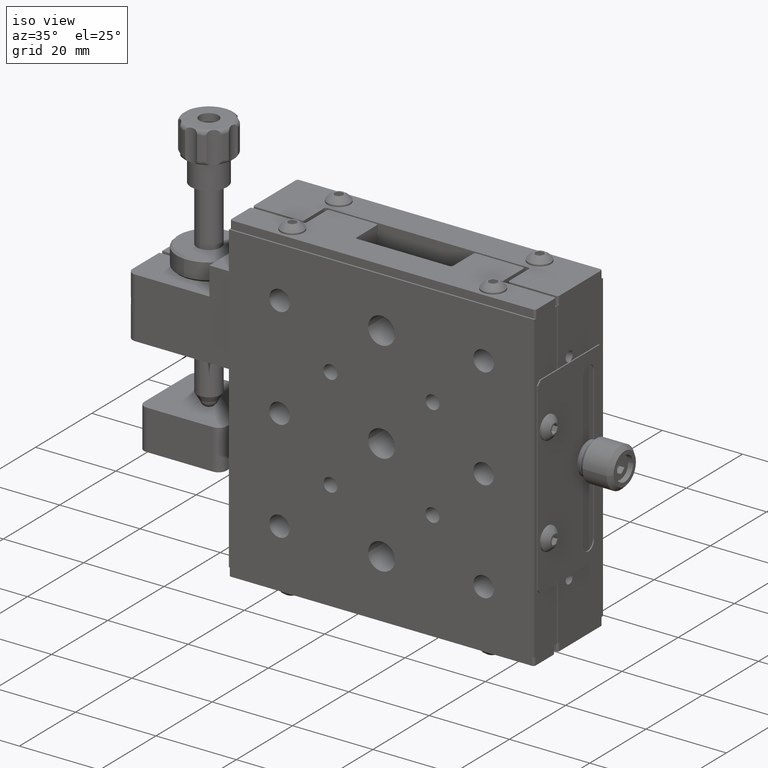
[diagram: clean part render]
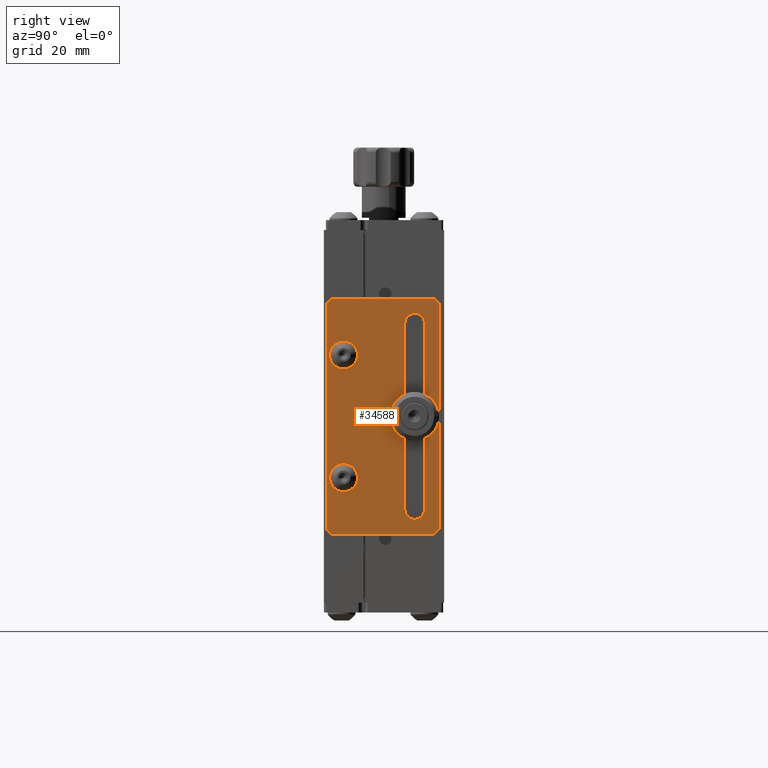
[diagram: tour spotlight — one face highlighted and labeled with its STEP entity id]
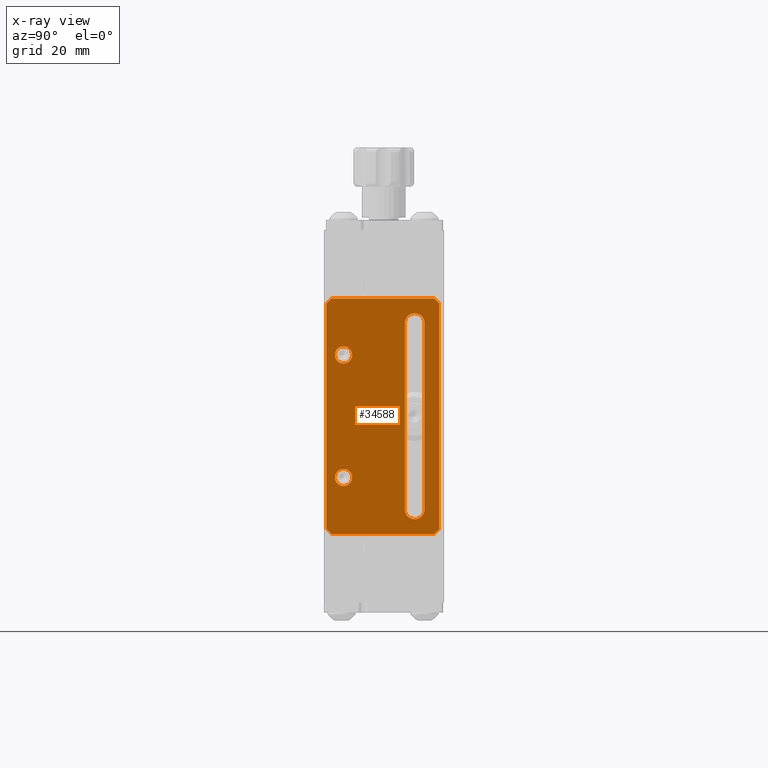
[diagram: x-ray of the same camera — body ghosted, this tour face saturated]
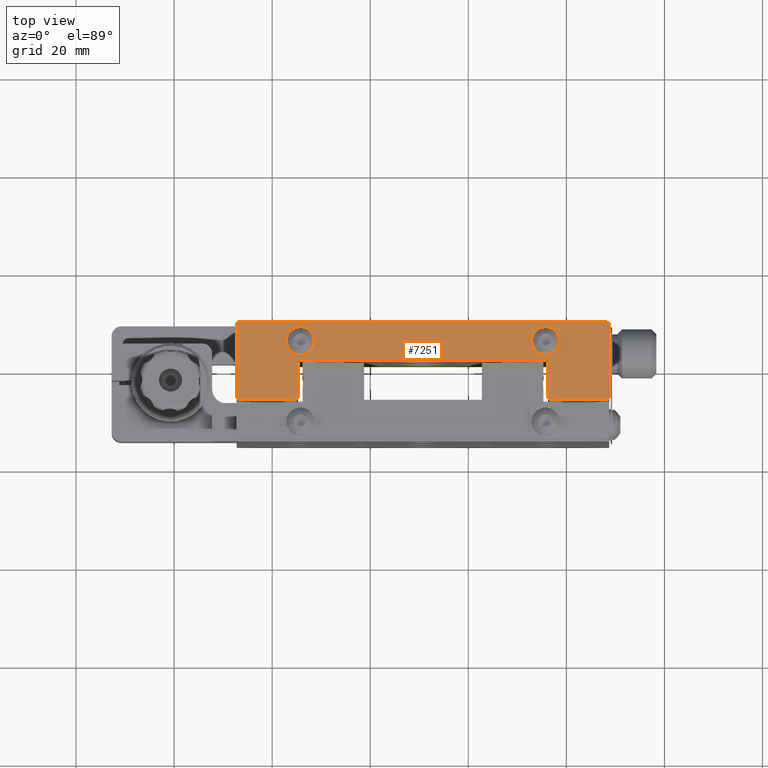
[diagram: tour spotlight — one face highlighted and labeled with its STEP entity id]
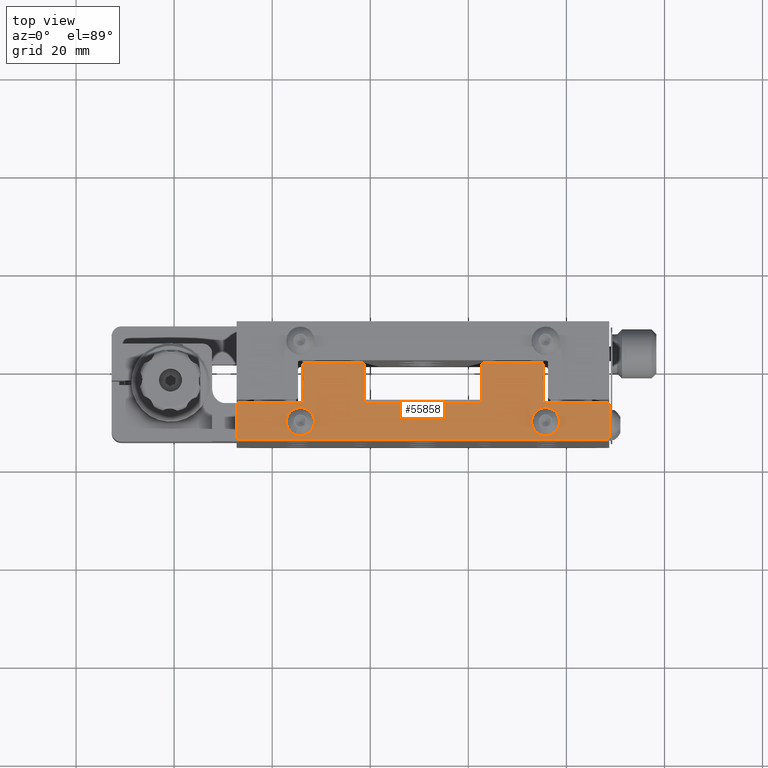
[diagram: tour spotlight — one face highlighted and labeled with its STEP entity id]
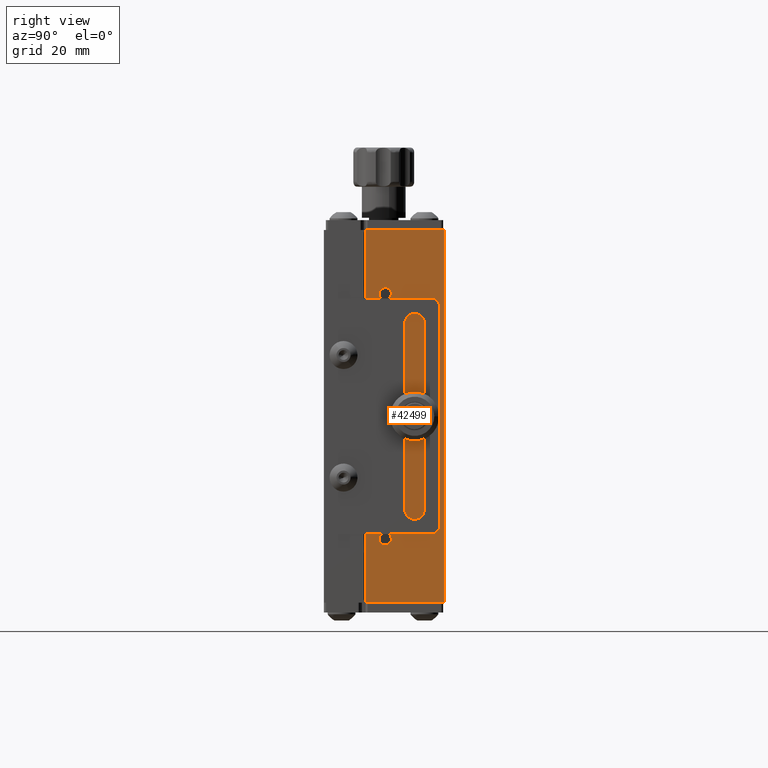
[diagram: tour spotlight — one face highlighted and labeled with its STEP entity id]
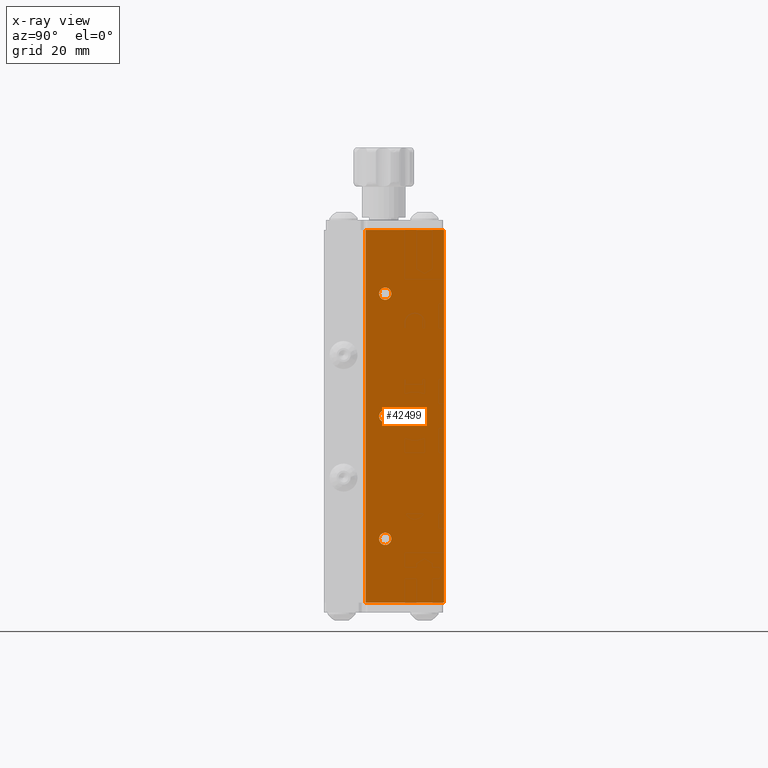
[diagram: x-ray of the same camera — body ghosted, this tour face saturated]
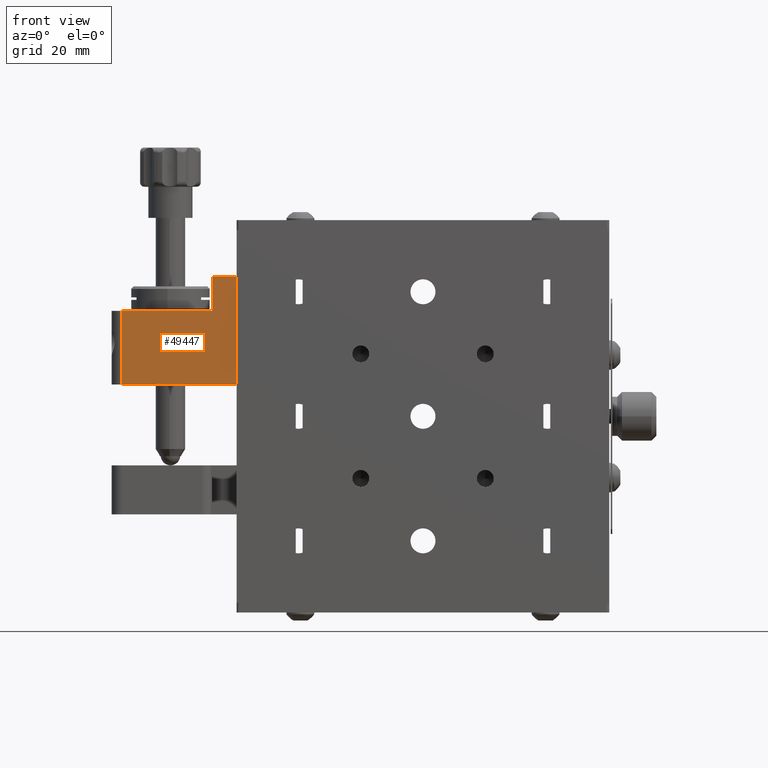
[diagram: tour spotlight — one face highlighted and labeled with its STEP entity id]
A machine part: a face-by-face anatomy tour. The part has 1901 B-rep faces; the first image is the clean iso view, then the 5 largest visible faces are spotlighted one at a time (largest first), each with its STEP entity span.

Face 1 — right view, entity #34588. An x-ray twin of the same camera follows (body ghosted, this face saturated) — the face is partly hidden behind the body. In plain terms, the highlighted planar face has unit normal (1, 0, 0).
Definition (entity closure, byte-faithful):
#589 = LINE ( 'NONE', #21734, #37340 ) ;
#680 = EDGE_CURVE ( 'NONE', #48621, #15400, #46478, .T. ) ;
#1607 = VERTEX_POINT ( 'NONE', #44574 ) ;
#1694 = DIRECTION ( 'NONE',  ( 1.200414616576333800E-016, -1.000000000000000000, -2.775557561562891400E-017 ) ) ;
#2296 = ORIENTED_EDGE ( 'NONE', *, *, #680, .T. ) ;
#3141 = CARTESIAN_POINT ( 'NONE',  ( 49.34980746936875600, 1.345865631787174700, 92.09999999999995200 ) ) ;
#3148 = DIRECTION ( 'NONE',  ( 1.000000000000000000, 1.200414616576333800E-016, 2.422095583000500800E-017 ) ) ;
#3256 = EDGE_LOOP ( 'NONE', ( #33005, #2296, #54202, #43592, #8727, #40126, #24629, #7648 ) ) ;
#3305 = DIRECTION ( 'NONE',  ( -1.200414616576333800E-016, 1.000000000000000000, 3.581790948493065600E-016 ) ) ;
#3489 = DIRECTION ( 'NONE',  ( 1.000000000000000000, 1.200414616576333800E-016, 2.422095583000500800E-017 ) ) ;
#3823 = EDGE_CURVE ( 'NONE', #20763, #13793, #21912, .T. ) ;
#4222 = VERTEX_POINT ( 'NONE', #30341 ) ;
#4531 = AXIS2_PLACEMENT_3D ( 'NONE', #45520, #19660, #49784 ) ;
#6308 = LINE ( 'NONE', #16916, #25067 ) ;
#7247 = ORIENTED_EDGE ( 'NONE', *, *, #55391, .F. ) ;
#7370 = CARTESIAN_POINT ( 'NONE',  ( 49.34980746936875600, 3.345865631787172700, 130.0999999999999400 ) ) ;
#7648 = ORIENTED_EDGE ( 'NONE', *, *, #47813, .T. ) ;
#7960 = EDGE_CURVE ( 'NONE', #15400, #28336, #16241, .T. ) ;
#8007 = ORIENTED_EDGE ( 'NONE', *, *, #3823, .F. ) ;
#8727 = ORIENTED_EDGE ( 'NONE', *, *, #56581, .T. ) ;
#9535 = AXIS2_PLACEMENT_3D ( 'NONE', #20138, #19949, #50624 ) ;
#10622 = CARTESIAN_POINT ( 'NONE',  ( 49.34980746936875600, 7.345865631787152200, 135.0999999999999400 ) ) ;
#10920 = CARTESIAN_POINT ( 'NONE',  ( 49.34980746936875600, -11.15413436821283400, 96.84999999999993700 ) ) ;
#11279 = DIRECTION ( 'NONE',  ( 0.0000000000000000000, 0.0000000000000000000, -1.000000000000000000 ) ) ;
#11571 = CARTESIAN_POINT ( 'NONE',  ( 49.34980746936875600, 8.345865631787159300, 88.09999999999993700 ) ) ;
#11760 = DIRECTION ( 'NONE',  ( -1.020089336758740900E-016, 0.7071067811865500200, 0.7071067811865451300 ) ) ;
#12651 = ORIENTED_EDGE ( 'NONE', *, *, #31283, .F. ) ;
#13051 = DIRECTION ( 'NONE',  ( 2.422095583000494100E-017, 2.775557561562888300E-017, -1.000000000000000000 ) ) ;
#13335 = CARTESIAN_POINT ( 'NONE',  ( 49.34980746936875600, -11.15413436821283400, 125.3499999999999400 ) ) ;
#13793 = VERTEX_POINT ( 'NONE', #45976 ) ;
#13824 = AXIS2_PLACEMENT_3D ( 'NONE', #25141, #20529, #47708 ) ;
#14127 = CARTESIAN_POINT ( 'NONE',  ( 49.34980746936875600, -14.65413436821283900, 134.0999999999999400 ) ) ;
#14163 = ORIENTED_EDGE ( 'NONE', *, *, #18205, .F. ) ;
#14481 = AXIS2_PLACEMENT_3D ( 'NONE', #7370, #3148, #11279 ) ;
#15400 = VERTEX_POINT ( 'NONE', #15713 ) ;
#15713 = CARTESIAN_POINT ( 'NONE',  ( 49.34980746936875600, -14.65413436821283900, 134.0999999999999400 ) ) ;
#16241 = LINE ( 'NONE', #14127, #49404 ) ;
#16916 = CARTESIAN_POINT ( 'NONE',  ( 49.34980746936875600, 7.345865631787159300, 87.09999999999995200 ) ) ;
#17084 = EDGE_LOOP ( 'NONE', ( #14163, #51995 ) ) ;
#17272 = DIRECTION ( 'NONE',  ( 1.000000000000000000, 1.200414616576333800E-016, 2.422095583000500800E-017 ) ) ;
#18151 = CARTESIAN_POINT ( 'NONE',  ( 49.34980746936875600, 5.345865631787167300, 130.0999999999999400 ) ) ;
#18205 = EDGE_CURVE ( 'NONE', #32991, #1607, #52015, .T. ) ;
#19006 = DIRECTION ( 'NONE',  ( 2.422095583000494100E-017, 2.775557561562888300E-017, -1.000000000000000000 ) ) ;
#19182 = EDGE_LOOP ( 'NONE', ( #8007, #7247, #39915, #35525, #32544 ) ) ;
#19660 = DIRECTION ( 'NONE',  ( 1.000000000000000000, 1.200414616576333800E-016, 2.422095583000500800E-017 ) ) ;
#19949 = DIRECTION ( 'NONE',  ( 1.000000000000000000, 1.200414616576333800E-016, 2.422095583000500800E-017 ) ) ;
#20090 = EDGE_CURVE ( 'NONE', #56976, #48621, #55419, .T. ) ;
#20138 = CARTESIAN_POINT ( 'NONE',  ( 49.34980746936875600, 3.345865631787176200, 92.09999999999995200 ) ) ;
#20456 = VERTEX_POINT ( 'NONE', #10920 ) ;
#20470 = CARTESIAN_POINT ( 'NONE',  ( 49.34980746936875600, 1.345865631787171100, 130.0999999999999400 ) ) ;
#20529 = DIRECTION ( 'NONE',  ( 1.000000000000000000, 1.200414616576333800E-016, 2.422095583000500800E-017 ) ) ;
#20763 = VERTEX_POINT ( 'NONE', #31842 ) ;
#20939 = LINE ( 'NONE', #51813, #43013 ) ;
#21525 = CIRCLE ( 'NONE', #4531, 1.750000000000001600 ) ;
#21734 = CARTESIAN_POINT ( 'NONE',  ( 49.34980746936875600, 8.345865631787159300, 88.09999999999993700 ) ) ;
#21812 = CIRCLE ( 'NONE', #9535, 2.000000000000001800 ) ;
#21912 = LINE ( 'NONE', #18151, #32989 ) ;
#22523 = CARTESIAN_POINT ( 'NONE',  ( 49.34980746936875600, 3.345865631787172700, 132.0999999999999400 ) ) ;
#23731 = VECTOR ( 'NONE', #45624, 999.9999999999998900 ) ;
#24629 = ORIENTED_EDGE ( 'NONE', *, *, #47806, .T. ) ;
#24932 = VERTEX_POINT ( 'NONE', #42184 ) ;
#24946 = CARTESIAN_POINT ( 'NONE',  ( 49.34980746936875600, 8.345865631787155800, 134.0999999999999400 ) ) ;
#25067 = VECTOR ( 'NONE', #3305, 1000.000000000000000 ) ;
#25141 = CARTESIAN_POINT ( 'NONE',  ( 49.34980746936875600, 3.345865631787172700, 130.0999999999999400 ) ) ;
#25532 = CARTESIAN_POINT ( 'NONE',  ( 49.34980746936875600, -13.65413436821283900, 135.0999999999999400 ) ) ;
#27277 = CARTESIAN_POINT ( 'NONE',  ( 49.34980746936875600, -11.15413436821283400, 123.5999999999999400 ) ) ;
#27357 = LINE ( 'NONE', #11571, #35629 ) ;
#27390 = EDGE_CURVE ( 'NONE', #1607, #32991, #50431, .T. ) ;
#27718 = CARTESIAN_POINT ( 'NONE',  ( 49.34980746936875600, -11.15413436821283400, 100.3499999999999400 ) ) ;
#28336 = VERTEX_POINT ( 'NONE', #44765 ) ;
#29372 = FACE_BOUND ( 'NONE', #19182, .T. ) ;
#29775 = EDGE_CURVE ( 'NONE', #39064, #24932, #47250, .T. ) ;
#30012 = DIRECTION ( 'NONE',  ( -6.775532944744138600E-017, 0.7071067811865492400, -0.7071067811865458000 ) ) ;
#30078 = ORIENTED_EDGE ( 'NONE', *, *, #41502, .F. ) ;
#30341 = CARTESIAN_POINT ( 'NONE',  ( 49.34980746936875600, 7.345865631787159300, 87.09999999999995200 ) ) ;
#31283 = EDGE_CURVE ( 'NONE', #20456, #38348, #52871, .T. ) ;
#31842 = CARTESIAN_POINT ( 'NONE',  ( 49.34980746936875600, 5.345865631787170900, 92.09999999999995200 ) ) ;
#31967 = EDGE_CURVE ( 'NONE', #56370, #39064, #45261, .T. ) ;
#32099 = VECTOR ( 'NONE', #51905, 1000.000000000000000 ) ;
#32544 = ORIENTED_EDGE ( 'NONE', *, *, #40068, .F. ) ;
#32989 = VECTOR ( 'NONE', #44612, 1000.000000000000000 ) ;
#32991 = VERTEX_POINT ( 'NONE', #13335 ) ;
#33005 = ORIENTED_EDGE ( 'NONE', *, *, #20090, .T. ) ;
#34166 = FACE_OUTER_BOUND ( 'NONE', #3256, .T. ) ;
#34449 = CARTESIAN_POINT ( 'NONE',  ( 49.34980746936875600, -11.15413436821283400, 98.59999999999993700 ) ) ;
#34558 = VECTOR ( 'NONE', #43358, 999.9999999999998900 ) ;
#34588 = ADVANCED_FACE ( 'NONE', ( #45886, #34166, #29372, #37589 ), #49201, .T. ) ;
#35525 = ORIENTED_EDGE ( 'NONE', *, *, #31967, .F. ) ;
#35580 = CARTESIAN_POINT ( 'NONE',  ( 49.34980746936875600, -13.65413436821285000, 87.09999999999993700 ) ) ;
#35629 = VECTOR ( 'NONE', #11760, 1000.000000000000100 ) ;
#36090 = AXIS2_PLACEMENT_3D ( 'NONE', #39489, #3489, #52272 ) ;
#37114 = VERTEX_POINT ( 'NONE', #24946 ) ;
#37305 = AXIS2_PLACEMENT_3D ( 'NONE', #27277, #40791, #49674 ) ;
#37340 = VECTOR ( 'NONE', #39481, 1000.000000000000000 ) ;
#37589 = FACE_BOUND ( 'NONE', #49736, .T. ) ;
#38348 = VERTEX_POINT ( 'NONE', #27718 ) ;
#39064 = VERTEX_POINT ( 'NONE', #20470 ) ;
#39481 = DIRECTION ( 'NONE',  ( -2.422095583000493100E-017, -1.031783354407074700E-016, 1.000000000000000000 ) ) ;
#39489 = CARTESIAN_POINT ( 'NONE',  ( 49.34980746936875600, -11.15413436821283400, 123.5999999999999400 ) ) ;
#39556 = DIRECTION ( 'NONE',  ( 1.000000000000000000, 1.200414616576333800E-016, 2.422095583000494400E-017 ) ) ;
#39915 = ORIENTED_EDGE ( 'NONE', *, *, #29775, .F. ) ;
#40068 = EDGE_CURVE ( 'NONE', #13793, #56370, #50688, .T. ) ;
#40126 = ORIENTED_EDGE ( 'NONE', *, *, #51158, .T. ) ;
#40791 = DIRECTION ( 'NONE',  ( 1.000000000000000000, 1.200414616576333800E-016, 2.422095583000500800E-017 ) ) ;
#40933 = AXIS2_PLACEMENT_3D ( 'NONE', #48430, #39556, #13051 ) ;
#41502 = EDGE_CURVE ( 'NONE', #38348, #20456, #21525, .T. ) ;
#42184 = CARTESIAN_POINT ( 'NONE',  ( 49.34980746936875600, 1.345865631787174700, 92.09999999999995200 ) ) ;
#43013 = VECTOR ( 'NONE', #30012, 1000.000000000000100 ) ;
#43358 = DIRECTION ( 'NONE',  ( 6.775532944744170700E-017, -0.7071067811865512400, 0.7071067811865439100 ) ) ;
#43592 = ORIENTED_EDGE ( 'NONE', *, *, #57146, .T. ) ;
#44574 = CARTESIAN_POINT ( 'NONE',  ( 49.34980746936875600, -11.15413436821283400, 121.8499999999999400 ) ) ;
#44612 = DIRECTION ( 'NONE',  ( -2.422095583000492800E-017, -1.190568111933556100E-016, 1.000000000000000000 ) ) ;
#44765 = CARTESIAN_POINT ( 'NONE',  ( 49.34980746936875600, -14.65413436821285700, 88.09999999999993700 ) ) ;
#45261 = CIRCLE ( 'NONE', #13824, 2.000000000000001800 ) ;
#45269 = VERTEX_POINT ( 'NONE', #35580 ) ;
#45520 = CARTESIAN_POINT ( 'NONE',  ( 49.34980746936875600, -11.15413436821283400, 98.59999999999993700 ) ) ;
#45624 = DIRECTION ( 'NONE',  ( 1.020089336758738500E-016, -0.7071067811865472400, -0.7071067811865479100 ) ) ;
#45815 = CARTESIAN_POINT ( 'NONE',  ( 49.34980746936875600, 7.345865631787152200, 135.0999999999999400 ) ) ;
#45886 = FACE_BOUND ( 'NONE', #17084, .T. ) ;
#45976 = CARTESIAN_POINT ( 'NONE',  ( 49.34980746936875600, 5.345865631787170900, 130.0999999999999400 ) ) ;
#46037 = VERTEX_POINT ( 'NONE', #52071 ) ;
#46478 = LINE ( 'NONE', #50451, #23731 ) ;
#47250 = LINE ( 'NONE', #3141, #32099 ) ;
#47708 = DIRECTION ( 'NONE',  ( 0.0000000000000000000, 0.0000000000000000000, -1.000000000000000000 ) ) ;
#47806 = EDGE_CURVE ( 'NONE', #46037, #37114, #589, .T. ) ;
#47813 = EDGE_CURVE ( 'NONE', #37114, #56976, #52538, .T. ) ;
#48333 = DIRECTION ( 'NONE',  ( 0.0000000000000000000, 0.0000000000000000000, -1.000000000000000000 ) ) ;
#48430 = CARTESIAN_POINT ( 'NONE',  ( 49.34980746936875600, -14.65413436821283900, 135.0999999999999400 ) ) ;
#48621 = VERTEX_POINT ( 'NONE', #25532 ) ;
#48995 = AXIS2_PLACEMENT_3D ( 'NONE', #34449, #17272, #48333 ) ;
#49201 = PLANE ( 'NONE',  #40933 ) ;
#49404 = VECTOR ( 'NONE', #19006, 1000.000000000000000 ) ;
#49674 = DIRECTION ( 'NONE',  ( 0.0000000000000000000, 0.0000000000000000000, -1.000000000000000000 ) ) ;
#49736 = EDGE_LOOP ( 'NONE', ( #30078, #12651 ) ) ;
#49784 = DIRECTION ( 'NONE',  ( 0.0000000000000000000, 0.0000000000000000000, -1.000000000000000000 ) ) ;
#50431 = CIRCLE ( 'NONE', #37305, 1.750000000000001600 ) ;
#50451 = CARTESIAN_POINT ( 'NONE',  ( 49.34980746936875600, -13.65413436821283900, 135.0999999999999400 ) ) ;
#50518 = VECTOR ( 'NONE', #1694, 1000.000000000000000 ) ;
#50624 = DIRECTION ( 'NONE',  ( 0.0000000000000000000, 0.0000000000000000000, -1.000000000000000000 ) ) ;
#50688 = CIRCLE ( 'NONE', #14481, 2.000000000000001800 ) ;
#51158 = EDGE_CURVE ( 'NONE', #4222, #46037, #27357, .T. ) ;
#51813 = CARTESIAN_POINT ( 'NONE',  ( 49.34980746936875600, -13.65413436821285000, 87.09999999999993700 ) ) ;
#51905 = DIRECTION ( 'NONE',  ( 2.422095583000492800E-017, 1.190568111933556100E-016, -1.000000000000000000 ) ) ;
#51995 = ORIENTED_EDGE ( 'NONE', *, *, #27390, .F. ) ;
#52015 = CIRCLE ( 'NONE', #36090, 1.750000000000001600 ) ;
#52071 = CARTESIAN_POINT ( 'NONE',  ( 49.34980746936875600, 8.345865631787159300, 88.09999999999993700 ) ) ;
#52272 = DIRECTION ( 'NONE',  ( 0.0000000000000000000, 0.0000000000000000000, -1.000000000000000000 ) ) ;
#52538 = LINE ( 'NONE', #52630, #34558 ) ;
#52630 = CARTESIAN_POINT ( 'NONE',  ( 49.34980746936875600, 8.345865631787155800, 134.0999999999999400 ) ) ;
#52871 = CIRCLE ( 'NONE', #48995, 1.750000000000001600 ) ;
#54202 = ORIENTED_EDGE ( 'NONE', *, *, #7960, .T. ) ;
#55391 = EDGE_CURVE ( 'NONE', #24932, #20763, #21812, .T. ) ;
#55419 = LINE ( 'NONE', #45815, #50518 ) ;
#56370 = VERTEX_POINT ( 'NONE', #22523 ) ;
#56581 = EDGE_CURVE ( 'NONE', #45269, #4222, #6308, .T. ) ;
#56976 = VERTEX_POINT ( 'NONE', #10622 ) ;
#57146 = EDGE_CURVE ( 'NONE', #28336, #45269, #20939, .T. ) ;

Face 2 — top view, entity #7251. In plain terms, the highlighted planar face has unit normal (0, 0, -1).
Definition (entity closure, byte-faithful):
#104 = CARTESIAN_POINT ( 'NONE',  ( 33.49980746936900300, 5.345865631787555500, 151.1000000000000500 ) ) ;
#797 = CARTESIAN_POINT ( 'NONE',  ( 36.74980746936893900, -6.654134368212541300, 151.1000000000000500 ) ) ;
#898 = VERTEX_POINT ( 'NONE', #47249 ) ;
#990 = CARTESIAN_POINT ( 'NONE',  ( -14.25019253063128100, 5.345865631787789100, 151.1000000000000500 ) ) ;
#1304 = LINE ( 'NONE', #6273, #20726 ) ;
#1334 = CARTESIAN_POINT ( 'NONE',  ( -14.75019253063126200, 1.345865631787754900, 151.1000000000000500 ) ) ;
#1521 = CARTESIAN_POINT ( 'NONE',  ( -14.75019253063126200, 1.345865631787754900, 151.1000000000000500 ) ) ;
#1540 = EDGE_CURVE ( 'NONE', #36988, #40197, #42290, .T. ) ;
#1655 = CARTESIAN_POINT ( 'NONE',  ( -14.75019253063129900, 0.8458656317877535400, 151.1000000000000500 ) ) ;
#1987 = EDGE_CURVE ( 'NONE', #28813, #25498, #46375, .T. ) ;
#2108 = CARTESIAN_POINT ( 'NONE',  ( -14.25019253063128100, 5.345865631787789100, 151.1000000000000500 ) ) ;
#2824 = LINE ( 'NONE', #1334, #13226 ) ;
#3586 = VECTOR ( 'NONE', #33900, 1000.000000000000000 ) ;
#3602 = DIRECTION ( 'NONE',  ( 1.000000000000000000, -5.204170427930398400E-015, 0.0000000000000000000 ) ) ;
#3607 = EDGE_CURVE ( 'NONE', #19057, #33077, #37805, .T. ) ;
#3773 = AXIS2_PLACEMENT_3D ( 'NONE', #26178, #39675, #53215 ) ;
#3809 = FACE_BOUND ( 'NONE', #39613, .T. ) ;
#3811 = CARTESIAN_POINT ( 'NONE',  ( -15.25019253063133100, -6.154134368212274900, 151.1000000000000500 ) ) ;
#5016 = DIRECTION ( 'NONE',  ( 1.000000000000000000, -4.987329993433298300E-015, 0.0000000000000000000 ) ) ;
#5260 = EDGE_LOOP ( 'NONE', ( #34997, #14647, #23025, #40665, #29634, #13504, #51888, #17150, #53137, #22618, #46196, #26361, #48797, #43884, #26276, #53678 ) ) ;
#5569 = CARTESIAN_POINT ( 'NONE',  ( 35.74980746936903800, 0.8458656317875574700, 151.1000000000000500 ) ) ;
#5624 = LINE ( 'NONE', #16319, #3586 ) ;
#5835 = FACE_BOUND ( 'NONE', #41958, .T. ) ;
#6101 = CARTESIAN_POINT ( 'NONE',  ( 48.74980746936902400, 8.645865631787481600, 151.1000000000000500 ) ) ;
#6273 = CARTESIAN_POINT ( 'NONE',  ( -27.25019253063131000, 9.145865631787833300, 151.1000000000000500 ) ) ;
#6540 = DIRECTION ( 'NONE',  ( -4.622231866485331300E-032, 1.201934359693186400E-028, -1.000000000000000000 ) ) ;
#6560 = CARTESIAN_POINT ( 'NONE',  ( 48.24980746936894600, -6.654134368212617700, 151.1000000000000500 ) ) ;
#6724 = DIRECTION ( 'NONE',  ( 1.000000000000000000, -5.011423375044065600E-015, 0.0000000000000000000 ) ) ;
#6751 = DIRECTION ( 'NONE',  ( -4.622231866485331300E-032, 1.201934359693186400E-028, -1.000000000000000000 ) ) ;
#6796 = CIRCLE ( 'NONE', #3773, 0.5000000000000004400 ) ;
#7100 = AXIS2_PLACEMENT_3D ( 'NONE', #51277, #20602, #16308 ) ;
#7251 = ADVANCED_FACE ( 'NONE', ( #5835, #39158, #3809 ), #15027, .F. ) ;
#7735 = CARTESIAN_POINT ( 'NONE',  ( 48.24980746936902400, 9.145865631787465600, 151.1000000000000500 ) ) ;
#7986 = AXIS2_PLACEMENT_3D ( 'NONE', #5569, #54762, #54561 ) ;
#8896 = EDGE_CURVE ( 'NONE', #44999, #32868, #56079, .T. ) ;
#9112 = CIRCLE ( 'NONE', #7986, 0.5000000000000004400 ) ;
#9325 = CIRCLE ( 'NONE', #24863, 2.250000000000019500 ) ;
#10211 = EDGE_CURVE ( 'NONE', #28813, #33077, #11252, .T. ) ;
#10328 = AXIS2_PLACEMENT_3D ( 'NONE', #22694, #36194, #5016 ) ;
#10516 = DIRECTION ( 'NONE',  ( -1.000000000000000000, 4.884981308350684800E-015, -4.641491165973216500E-032 ) ) ;
#11252 = CIRCLE ( 'NONE', #40953, 0.5000000000000004400 ) ;
#11547 = CARTESIAN_POINT ( 'NONE',  ( 36.74980746936887500, -6.154134368212542200, 151.1000000000000500 ) ) ;
#13226 = VECTOR ( 'NONE', #46022, 1000.000000000000000 ) ;
#13232 = CARTESIAN_POINT ( 'NONE',  ( 48.24980746936902400, 8.645865631787465600, 151.1000000000000500 ) ) ;
#13435 = EDGE_CURVE ( 'NONE', #14009, #23276, #49162, .T. ) ;
#13504 = ORIENTED_EDGE ( 'NONE', *, *, #57116, .T. ) ;
#14009 = VERTEX_POINT ( 'NONE', #53174 ) ;
#14647 = ORIENTED_EDGE ( 'NONE', *, *, #56918, .T. ) ;
#15027 = PLANE ( 'NONE',  #36007 ) ;
#15430 = VERTEX_POINT ( 'NONE', #37760 ) ;
#15632 = CARTESIAN_POINT ( 'NONE',  ( 35.74980746936896700, 1.345865631787531000, 151.1000000000000500 ) ) ;
#15645 = DIRECTION ( 'NONE',  ( 1.675171956143272100E-015, 1.000000000000000000, -1.201918952253625400E-028 ) ) ;
#16172 = ORIENTED_EDGE ( 'NONE', *, *, #13435, .T. ) ;
#16308 = DIRECTION ( 'NONE',  ( 1.000000000000000000, -3.469446951953587400E-015, 0.0000000000000000000 ) ) ;
#16319 = CARTESIAN_POINT ( 'NONE',  ( 48.74980746936902400, 9.145865631787481600, 151.1000000000000500 ) ) ;
#16715 = AXIS2_PLACEMENT_3D ( 'NONE', #3811, #26115, #3602 ) ;
#17150 = ORIENTED_EDGE ( 'NONE', *, *, #30018, .T. ) ;
#17547 = DIRECTION ( 'NONE',  ( 4.622231866485331300E-032, -1.201934359693186400E-028, 1.000000000000000000 ) ) ;
#18038 = CARTESIAN_POINT ( 'NONE',  ( -12.00019253063127200, 5.345865631787777500, 151.1000000000000500 ) ) ;
#18363 = CIRCLE ( 'NONE', #55400, 2.250000000000019500 ) ;
#18944 = DIRECTION ( 'NONE',  ( 4.641491166031930900E-032, 1.201934359693186400E-028, -1.000000000000000000 ) ) ;
#19057 = VERTEX_POINT ( 'NONE', #6560 ) ;
#19071 = DIRECTION ( 'NONE',  ( -4.622231866485331300E-032, 1.201934359693186400E-028, -1.000000000000000000 ) ) ;
#19261 = EDGE_CURVE ( 'NONE', #36988, #28518, #5624, .T. ) ;
#19413 = DIRECTION ( 'NONE',  ( -3.420874694626261200E-015, -1.000000000000000000, 1.201911248533847900E-028 ) ) ;
#20004 = DIRECTION ( 'NONE',  ( 1.000000000000000000, -5.011423375044089300E-015, 0.0000000000000000000 ) ) ;
#20602 = DIRECTION ( 'NONE',  ( 4.622231866485331300E-032, -1.201934359693186400E-028, 1.000000000000000000 ) ) ;
#20726 = VECTOR ( 'NONE', #33439, 1000.000000000000000 ) ;
#21495 = VECTOR ( 'NONE', #10516, 1000.000000000000000 ) ;
#22485 = VERTEX_POINT ( 'NONE', #50739 ) ;
#22618 = ORIENTED_EDGE ( 'NONE', *, *, #46211, .T. ) ;
#22694 = CARTESIAN_POINT ( 'NONE',  ( -14.25019253063129900, 0.8458656317877344400, 151.1000000000000500 ) ) ;
#23025 = ORIENTED_EDGE ( 'NONE', *, *, #55331, .F. ) ;
#23272 = CARTESIAN_POINT ( 'NONE',  ( 36.24980746936897400, 1.345865631787529300, 151.1000000000000500 ) ) ;
#23276 = VERTEX_POINT ( 'NONE', #104 ) ;
#23666 = LINE ( 'NONE', #1521, #49196 ) ;
#24767 = EDGE_CURVE ( 'NONE', #32607, #40197, #1304, .T. ) ;
#24863 = AXIS2_PLACEMENT_3D ( 'NONE', #990, #19071, #41270 ) ;
#25470 = VERTEX_POINT ( 'NONE', #15632 ) ;
#25498 = VERTEX_POINT ( 'NONE', #29393 ) ;
#26115 = DIRECTION ( 'NONE',  ( 4.622231866485331300E-032, -1.201934359693186400E-028, 1.000000000000000000 ) ) ;
#26178 = CARTESIAN_POINT ( 'NONE',  ( 48.24980746936894600, -6.154134368212585700, 151.1000000000000500 ) ) ;
#26276 = ORIENTED_EDGE ( 'NONE', *, *, #19261, .F. ) ;
#26332 = CIRCLE ( 'NONE', #27588, 2.250000000000008900 ) ;
#26361 = ORIENTED_EDGE ( 'NONE', *, *, #10211, .T. ) ;
#27458 = VERTEX_POINT ( 'NONE', #1655 ) ;
#27588 = AXIS2_PLACEMENT_3D ( 'NONE', #42605, #6751, #47784 ) ;
#28326 = DIRECTION ( 'NONE',  ( 1.000000000000000000, -3.469446951953587400E-015, 0.0000000000000000000 ) ) ;
#28438 = VERTEX_POINT ( 'NONE', #39769 ) ;
#28518 = VERTEX_POINT ( 'NONE', #36827 ) ;
#28680 = CARTESIAN_POINT ( 'NONE',  ( -27.25019253063134500, -6.654134368212232300, 151.1000000000000500 ) ) ;
#28813 = VERTEX_POINT ( 'NONE', #39497 ) ;
#28919 = DIRECTION ( 'NONE',  ( -4.622231866485331300E-032, 1.201934359693186400E-028, -1.000000000000000000 ) ) ;
#29393 = CARTESIAN_POINT ( 'NONE',  ( 36.24980746936903800, 0.8458656317875332700, 151.1000000000000500 ) ) ;
#29634 = ORIENTED_EDGE ( 'NONE', *, *, #8896, .F. ) ;
#30018 = EDGE_CURVE ( 'NONE', #27458, #22485, #57194, .T. ) ;
#30899 = EDGE_CURVE ( 'NONE', #50753, #28438, #9325, .T. ) ;
#31438 = CARTESIAN_POINT ( 'NONE',  ( -26.75019253063134200, -6.654134368212232300, 151.1000000000000500 ) ) ;
#32279 = DIRECTION ( 'NONE',  ( 1.000000000000000000, -4.884981308350684800E-015, 4.641491165973216500E-032 ) ) ;
#32607 = VERTEX_POINT ( 'NONE', #46884 ) ;
#32868 = VERTEX_POINT ( 'NONE', #31438 ) ;
#33077 = VERTEX_POINT ( 'NONE', #797 ) ;
#33439 = DIRECTION ( 'NONE',  ( 1.000000000000000000, -4.819358545279194200E-015, 4.631861516251280900E-032 ) ) ;
#33652 = VECTOR ( 'NONE', #42464, 1000.000000000000000 ) ;
#33900 = DIRECTION ( 'NONE',  ( -3.431853957132442900E-015, -1.000000000000000000, 1.201911248533847900E-028 ) ) ;
#34425 = AXIS2_PLACEMENT_3D ( 'NONE', #54974, #28919, #20004 ) ;
#34479 = AXIS2_PLACEMENT_3D ( 'NONE', #54374, #50101, #28326 ) ;
#34997 = ORIENTED_EDGE ( 'NONE', *, *, #24767, .F. ) ;
#36007 = AXIS2_PLACEMENT_3D ( 'NONE', #54866, #18944, #32279 ) ;
#36015 = VECTOR ( 'NONE', #36575, 1000.000000000000000 ) ;
#36194 = DIRECTION ( 'NONE',  ( -4.622231866485331300E-032, 1.201934359693186400E-028, -1.000000000000000000 ) ) ;
#36455 = CARTESIAN_POINT ( 'NONE',  ( -14.75019253063133500, -6.654134368212246500, 151.1000000000000500 ) ) ;
#36575 = DIRECTION ( 'NONE',  ( 1.296185381249866200E-014, 1.000000000000000000, -1.201911248533847900E-028 ) ) ;
#36760 = CARTESIAN_POINT ( 'NONE',  ( -27.25019253063130300, 8.645865631787833300, 151.1000000000000500 ) ) ;
#36827 = CARTESIAN_POINT ( 'NONE',  ( 48.74980746936894600, -6.154134368212587500, 151.1000000000000500 ) ) ;
#36988 = VERTEX_POINT ( 'NONE', #6101 ) ;
#37472 = CIRCLE ( 'NONE', #34479, 0.5000000000000038900 ) ;
#37645 = CARTESIAN_POINT ( 'NONE',  ( 48.74980746936894600, -6.654134368212586600, 151.1000000000000500 ) ) ;
#37695 = DIRECTION ( 'NONE',  ( 1.000000000000000000, -5.204170427930416600E-015, 0.0000000000000000000 ) ) ;
#37760 = CARTESIAN_POINT ( 'NONE',  ( -14.75019253063133100, -6.154134368212278400, 151.1000000000000500 ) ) ;
#37805 = LINE ( 'NONE', #37645, #33652 ) ;
#37841 = ORIENTED_EDGE ( 'NONE', *, *, #30899, .T. ) ;
#39158 = FACE_OUTER_BOUND ( 'NONE', #5260, .T. ) ;
#39186 = CIRCLE ( 'NONE', #7100, 0.5000000000000038900 ) ;
#39195 = DIRECTION ( 'NONE',  ( 1.000000000000000000, -3.469446951953611000E-015, 0.0000000000000000000 ) ) ;
#39497 = CARTESIAN_POINT ( 'NONE',  ( 36.24980746936887500, -6.154134368212531600, 151.1000000000000500 ) ) ;
#39613 = EDGE_LOOP ( 'NONE', ( #50260, #16172 ) ) ;
#39675 = DIRECTION ( 'NONE',  ( 4.622231866485331300E-032, -1.201934359693186400E-028, 1.000000000000000000 ) ) ;
#39769 = CARTESIAN_POINT ( 'NONE',  ( -16.50019253063129200, 5.345865631787799700, 151.1000000000000500 ) ) ;
#40197 = VERTEX_POINT ( 'NONE', #7735 ) ;
#40665 = ORIENTED_EDGE ( 'NONE', *, *, #44104, .T. ) ;
#40953 = AXIS2_PLACEMENT_3D ( 'NONE', #11547, #51019, #37695 ) ;
#40983 = EDGE_CURVE ( 'NONE', #25470, #22485, #2824, .T. ) ;
#41067 = EDGE_CURVE ( 'NONE', #27458, #15430, #23666, .T. ) ;
#41270 = DIRECTION ( 'NONE',  ( 1.000000000000000000, -5.011423375044065600E-015, 0.0000000000000000000 ) ) ;
#41638 = CARTESIAN_POINT ( 'NONE',  ( -15.25019253063133500, -6.654134368212308600, 151.1000000000000500 ) ) ;
#41686 = EDGE_CURVE ( 'NONE', #23276, #14009, #26332, .T. ) ;
#41828 = EDGE_CURVE ( 'NONE', #19057, #28518, #6796, .T. ) ;
#41958 = EDGE_LOOP ( 'NONE', ( #52045, #37841 ) ) ;
#42290 = CIRCLE ( 'NONE', #56192, 0.5000000000000004400 ) ;
#42464 = DIRECTION ( 'NONE',  ( -1.000000000000000000, 4.884981308350684800E-015, -4.641491165973216500E-032 ) ) ;
#42605 = CARTESIAN_POINT ( 'NONE',  ( 35.74980746936900300, 5.345865631787543900, 151.1000000000000500 ) ) ;
#43884 = ORIENTED_EDGE ( 'NONE', *, *, #41828, .T. ) ;
#44104 = EDGE_CURVE ( 'NONE', #898, #32868, #39186, .T. ) ;
#44954 = EDGE_CURVE ( 'NONE', #28438, #50753, #18363, .T. ) ;
#44999 = VERTEX_POINT ( 'NONE', #41638 ) ;
#46022 = DIRECTION ( 'NONE',  ( -1.000000000000000000, 4.340754335495218700E-015, -4.641491165973216500E-032 ) ) ;
#46196 = ORIENTED_EDGE ( 'NONE', *, *, #1987, .F. ) ;
#46211 = EDGE_CURVE ( 'NONE', #25470, #25498, #9112, .T. ) ;
#46375 = LINE ( 'NONE', #23272, #36015 ) ;
#46884 = CARTESIAN_POINT ( 'NONE',  ( -26.75019253063131000, 9.145865631787849300, 151.1000000000000500 ) ) ;
#47249 = CARTESIAN_POINT ( 'NONE',  ( -27.25019253063134500, -6.154134368212230500, 151.1000000000000500 ) ) ;
#47784 = DIRECTION ( 'NONE',  ( 1.000000000000000000, -5.011423375044089300E-015, 0.0000000000000000000 ) ) ;
#48797 = ORIENTED_EDGE ( 'NONE', *, *, #3607, .F. ) ;
#49162 = CIRCLE ( 'NONE', #34425, 2.250000000000008900 ) ;
#49196 = VECTOR ( 'NONE', #19413, 1000.000000000000000 ) ;
#49443 = LINE ( 'NONE', #28680, #50118 ) ;
#50101 = DIRECTION ( 'NONE',  ( 4.622231866485331300E-032, -1.201934359693186400E-028, 1.000000000000000000 ) ) ;
#50118 = VECTOR ( 'NONE', #15645, 1000.000000000000000 ) ;
#50260 = ORIENTED_EDGE ( 'NONE', *, *, #41686, .T. ) ;
#50739 = CARTESIAN_POINT ( 'NONE',  ( -14.25019253063126200, 1.345865631787753100, 151.1000000000000500 ) ) ;
#50753 = VERTEX_POINT ( 'NONE', #18038 ) ;
#51019 = DIRECTION ( 'NONE',  ( 4.622231866485331300E-032, -1.201934359693186400E-028, 1.000000000000000000 ) ) ;
#51277 = CARTESIAN_POINT ( 'NONE',  ( -26.75019253063134200, -6.154134368212232300, 151.1000000000000500 ) ) ;
#51888 = ORIENTED_EDGE ( 'NONE', *, *, #41067, .F. ) ;
#52045 = ORIENTED_EDGE ( 'NONE', *, *, #44954, .T. ) ;
#53137 = ORIENTED_EDGE ( 'NONE', *, *, #40983, .F. ) ;
#53174 = CARTESIAN_POINT ( 'NONE',  ( 37.99980746936900300, 5.345865631787533300, 151.1000000000000500 ) ) ;
#53215 = DIRECTION ( 'NONE',  ( 1.000000000000000000, -5.204170427930416600E-015, 0.0000000000000000000 ) ) ;
#53678 = ORIENTED_EDGE ( 'NONE', *, *, #1540, .T. ) ;
#54064 = CIRCLE ( 'NONE', #16715, 0.5000000000000022200 ) ;
#54374 = CARTESIAN_POINT ( 'NONE',  ( -26.75019253063130300, 8.645865631787849300, 151.1000000000000500 ) ) ;
#54561 = DIRECTION ( 'NONE',  ( 1.000000000000000000, -4.987329993433315700E-015, 0.0000000000000000000 ) ) ;
#54762 = DIRECTION ( 'NONE',  ( -4.622231866485331300E-032, 1.201934359693186400E-028, -1.000000000000000000 ) ) ;
#54866 = CARTESIAN_POINT ( 'NONE',  ( -14.75019253063133500, -6.654134368212246500, 151.1000000000000500 ) ) ;
#54974 = CARTESIAN_POINT ( 'NONE',  ( 35.74980746936900300, 5.345865631787543900, 151.1000000000000500 ) ) ;
#55331 = EDGE_CURVE ( 'NONE', #898, #56872, #49443, .T. ) ;
#55400 = AXIS2_PLACEMENT_3D ( 'NONE', #2108, #6540, #6724 ) ;
#56079 = LINE ( 'NONE', #36455, #21495 ) ;
#56192 = AXIS2_PLACEMENT_3D ( 'NONE', #13232, #17547, #39195 ) ;
#56872 = VERTEX_POINT ( 'NONE', #36760 ) ;
#56918 = EDGE_CURVE ( 'NONE', #32607, #56872, #37472, .T. ) ;
#57116 = EDGE_CURVE ( 'NONE', #44999, #15430, #54064, .T. ) ;
#57194 = CIRCLE ( 'NONE', #10328, 0.5000000000000022200 ) ;

Face 3 — top view, entity #55858. In plain terms, the highlighted planar face has unit normal (0, 0, 1).
Definition (entity closure, byte-faithful):
#149 = DIRECTION ( 'NONE',  ( 0.0000000000000000000, 0.0000000000000000000, 1.000000000000000000 ) ) ;
#208 = DIRECTION ( 'NONE',  ( 0.0000000000000000000, 0.0000000000000000000, 1.000000000000000000 ) ) ;
#348 = VECTOR ( 'NONE', #29681, 1000.000000000000000 ) ;
#513 = CARTESIAN_POINT ( 'NONE',  ( -13.75019253063123200, 0.3458656317875397100, 151.1000000000000500 ) ) ;
#1457 = EDGE_CURVE ( 'NONE', #31394, #24702, #35346, .T. ) ;
#1970 = CIRCLE ( 'NONE', #52383, 0.5000000000000004400 ) ;
#2228 = ORIENTED_EDGE ( 'NONE', *, *, #35556, .T. ) ;
#2364 = ORIENTED_EDGE ( 'NONE', *, *, #22205, .T. ) ;
#2498 = ORIENTED_EDGE ( 'NONE', *, *, #1457, .T. ) ;
#3020 = VERTEX_POINT ( 'NONE', #19975 ) ;
#3193 = CARTESIAN_POINT ( 'NONE',  ( 35.24980746936877600, -7.354134368212453600, 151.1000000000000500 ) ) ;
#3431 = EDGE_CURVE ( 'NONE', #40694, #24330, #35069, .T. ) ;
#3465 = AXIS2_PLACEMENT_3D ( 'NONE', #25819, #30313, #17321 ) ;
#3491 = ORIENTED_EDGE ( 'NONE', *, *, #33327, .T. ) ;
#3728 = VERTEX_POINT ( 'NONE', #55749 ) ;
#3948 = CARTESIAN_POINT ( 'NONE',  ( 35.24980746936877600, 0.3458656317875397100, 151.1000000000000500 ) ) ;
#4061 = DIRECTION ( 'NONE',  ( 1.000000000000000000, 0.0000000000000000000, 0.0000000000000000000 ) ) ;
#4072 = VERTEX_POINT ( 'NONE', #37858 ) ;
#4261 = VERTEX_POINT ( 'NONE', #35867 ) ;
#4788 = CARTESIAN_POINT ( 'NONE',  ( 35.24980746936877600, 0.8458656317875401500, 151.1000000000000500 ) ) ;
#5526 = VECTOR ( 'NONE', #31700, 1000.000000000000000 ) ;
#5648 = VERTEX_POINT ( 'NONE', #36567 ) ;
#5688 = CARTESIAN_POINT ( 'NONE',  ( 48.24980746936876800, -7.354134368212453600, 151.1000000000000500 ) ) ;
#5868 = VECTOR ( 'NONE', #18866, 1000.000000000000000 ) ;
#6105 = DIRECTION ( 'NONE',  ( 0.0000000000000000000, 0.0000000000000000000, 1.000000000000000000 ) ) ;
#6649 = ORIENTED_EDGE ( 'NONE', *, *, #43870, .T. ) ;
#7625 = CARTESIAN_POINT ( 'NONE',  ( 22.74980746936876800, -7.354134368212453600, 151.1000000000000500 ) ) ;
#7714 = CARTESIAN_POINT ( 'NONE',  ( 23.24980746936877600, 0.3458656317875397100, 151.1000000000000500 ) ) ;
#8124 = LINE ( 'NONE', #14806, #41452 ) ;
#8230 = LINE ( 'NONE', #3193, #48358 ) ;
#8270 = LINE ( 'NONE', #45171, #5526 ) ;
#8662 = CARTESIAN_POINT ( 'NONE',  ( -0.7501925306312301500, -7.354134368212453600, 151.1000000000000500 ) ) ;
#9092 = EDGE_CURVE ( 'NONE', #24472, #26406, #42198, .T. ) ;
#9173 = LINE ( 'NONE', #4788, #19656 ) ;
#9722 = EDGE_CURVE ( 'NONE', #4261, #25202, #39763, .T. ) ;
#9912 = FACE_BOUND ( 'NONE', #52374, .T. ) ;
#10603 = VERTEX_POINT ( 'NONE', #19322 ) ;
#10761 = VERTEX_POINT ( 'NONE', #47556 ) ;
#10868 = LINE ( 'NONE', #35333, #19275 ) ;
#11059 = ORIENTED_EDGE ( 'NONE', *, *, #20268, .T. ) ;
#11241 = AXIS2_PLACEMENT_3D ( 'NONE', #54734, #6105, #32326 ) ;
#11598 = EDGE_CURVE ( 'NONE', #22158, #4072, #13201, .T. ) ;
#11618 = CIRCLE ( 'NONE', #51335, 0.5000000000000000000 ) ;
#11658 = DIRECTION ( 'NONE',  ( 1.000000000000000000, 0.0000000000000000000, 0.0000000000000000000 ) ) ;
#11903 = EDGE_CURVE ( 'NONE', #31624, #27477, #20166, .T. ) ;
#12109 = DIRECTION ( 'NONE',  ( -1.000000000000000000, -0.0000000000000000000, -0.0000000000000000000 ) ) ;
#12601 = VERTEX_POINT ( 'NONE', #19932 ) ;
#13201 = CIRCLE ( 'NONE', #35093, 0.5000000000000004400 ) ;
#13441 = EDGE_CURVE ( 'NONE', #25340, #22158, #40200, .T. ) ;
#13449 = CARTESIAN_POINT ( 'NONE',  ( 48.74980746936877600, -7.854134368212454500, 151.1000000000000500 ) ) ;
#14096 = LINE ( 'NONE', #44006, #15493 ) ;
#14290 = DIRECTION ( 'NONE',  ( 0.0000000000000000000, 0.0000000000000000000, 1.000000000000000000 ) ) ;
#14806 = CARTESIAN_POINT ( 'NONE',  ( 48.74980746936877600, -14.75413436821245300, 151.1000000000000500 ) ) ;
#14988 = EDGE_CURVE ( 'NONE', #24330, #53444, #14096, .T. ) ;
#15493 = VECTOR ( 'NONE', #21446, 1000.000000000000000 ) ;
#15526 = DIRECTION ( 'NONE',  ( 1.000000000000000000, 0.0000000000000000000, 0.0000000000000000000 ) ) ;
#15599 = AXIS2_PLACEMENT_3D ( 'NONE', #39534, #208, #21987 ) ;
#16968 = ORIENTED_EDGE ( 'NONE', *, *, #24810, .T. ) ;
#17321 = DIRECTION ( 'NONE',  ( 1.000000000000000000, 0.0000000000000000000, 0.0000000000000000000 ) ) ;
#17495 = DIRECTION ( 'NONE',  ( 0.0000000000000000000, -1.000000000000000000, 0.0000000000000000000 ) ) ;
#18043 = CARTESIAN_POINT ( 'NONE',  ( -26.75019253063123500, -14.25413436821245300, 151.1000000000000500 ) ) ;
#18484 = CARTESIAN_POINT ( 'NONE',  ( -1.250192530631232300, 0.8458656317875401500, 151.1000000000000500 ) ) ;
#18673 = ORIENTED_EDGE ( 'NONE', *, *, #11598, .T. ) ;
#18866 = DIRECTION ( 'NONE',  ( -1.000000000000000000, 0.0000000000000000000, 0.0000000000000000000 ) ) ;
#18964 = AXIS2_PLACEMENT_3D ( 'NONE', #53554, #14290, #31553 ) ;
#19245 = VECTOR ( 'NONE', #29990, 1000.000000000000000 ) ;
#19275 = VECTOR ( 'NONE', #39412, 1000.000000000000000 ) ;
#19290 = CARTESIAN_POINT ( 'NONE',  ( -27.25019253063123500, -14.25413436821245300, 151.1000000000000500 ) ) ;
#19322 = CARTESIAN_POINT ( 'NONE',  ( -27.25019253063123500, -7.854134368212454500, 151.1000000000000500 ) ) ;
#19656 = VECTOR ( 'NONE', #48530, 1000.000000000000000 ) ;
#19773 = CIRCLE ( 'NONE', #11241, 0.5000000000000004400 ) ;
#19823 = CARTESIAN_POINT ( 'NONE',  ( -26.75019253063123500, -7.354134368212453600, 151.1000000000000500 ) ) ;
#19932 = CARTESIAN_POINT ( 'NONE',  ( 23.24980746936877600, 0.8458656317875401500, 151.1000000000000500 ) ) ;
#19975 = CARTESIAN_POINT ( 'NONE',  ( 22.24980746936876800, -7.354134368212453600, 151.1000000000000500 ) ) ;
#20166 = CIRCLE ( 'NONE', #27351, 0.5000000000000004400 ) ;
#20268 = EDGE_CURVE ( 'NONE', #3020, #40694, #8270, .T. ) ;
#20319 = DIRECTION ( 'NONE',  ( -0.0000000000000000000, -0.0000000000000000000, -1.000000000000000000 ) ) ;
#20360 = ORIENTED_EDGE ( 'NONE', *, *, #32125, .T. ) ;
#20921 = CARTESIAN_POINT ( 'NONE',  ( 48.24980746936876800, -14.25413436821245300, 151.1000000000000500 ) ) ;
#21366 = CARTESIAN_POINT ( 'NONE',  ( -13.75019253063122800, -7.354134368212453600, 151.1000000000000500 ) ) ;
#21446 = DIRECTION ( 'NONE',  ( -2.115516434118058900E-016, 1.000000000000000000, 0.0000000000000000000 ) ) ;
#21758 = DIRECTION ( 'NONE',  ( 0.0000000000000000000, 0.0000000000000000000, 1.000000000000000000 ) ) ;
#21821 = EDGE_CURVE ( 'NONE', #52514, #33021, #23504, .T. ) ;
#21987 = DIRECTION ( 'NONE',  ( 1.000000000000000000, 0.0000000000000000000, 0.0000000000000000000 ) ) ;
#22158 = VERTEX_POINT ( 'NONE', #3948 ) ;
#22205 = EDGE_CURVE ( 'NONE', #27477, #34340, #8230, .T. ) ;
#22651 = CARTESIAN_POINT ( 'NONE',  ( -13.25019253063122800, 0.8458656317875401500, 151.1000000000000500 ) ) ;
#23361 = PLANE ( 'NONE',  #25183 ) ;
#23504 = CIRCLE ( 'NONE', #18964, 2.250000000000001800 ) ;
#23600 = AXIS2_PLACEMENT_3D ( 'NONE', #41613, #54384, #51960 ) ;
#23650 = CARTESIAN_POINT ( 'NONE',  ( -27.25019253063123500, -7.354134368212453600, 151.1000000000000500 ) ) ;
#24001 = EDGE_CURVE ( 'NONE', #12601, #5648, #24961, .T. ) ;
#24039 = VERTEX_POINT ( 'NONE', #35052 ) ;
#24330 = VERTEX_POINT ( 'NONE', #32738 ) ;
#24472 = VERTEX_POINT ( 'NONE', #30044 ) ;
#24702 = VERTEX_POINT ( 'NONE', #513 ) ;
#24709 = ORIENTED_EDGE ( 'NONE', *, *, #3431, .T. ) ;
#24810 = EDGE_CURVE ( 'NONE', #53080, #3020, #1970, .T. ) ;
#24961 = CIRCLE ( 'NONE', #38668, 0.5000000000000004400 ) ;
#25089 = ORIENTED_EDGE ( 'NONE', *, *, #26687, .T. ) ;
#25183 = AXIS2_PLACEMENT_3D ( 'NONE', #41125, #32618, #41504 ) ;
#25202 = VERTEX_POINT ( 'NONE', #39076 ) ;
#25340 = VERTEX_POINT ( 'NONE', #27492 ) ;
#25726 = ORIENTED_EDGE ( 'NONE', *, *, #56697, .T. ) ;
#25803 = DIRECTION ( 'NONE',  ( 1.000000000000000000, 0.0000000000000000000, 0.0000000000000000000 ) ) ;
#25819 = CARTESIAN_POINT ( 'NONE',  ( -14.25019253063122800, -6.854134368212453600, 151.1000000000000500 ) ) ;
#25909 = DIRECTION ( 'NONE',  ( 0.0000000000000000000, 0.0000000000000000000, 1.000000000000000000 ) ) ;
#26406 = VERTEX_POINT ( 'NONE', #48448 ) ;
#26536 = DIRECTION ( 'NONE',  ( 1.000000000000000000, 0.0000000000000000000, 0.0000000000000000000 ) ) ;
#26539 = AXIS2_PLACEMENT_3D ( 'NONE', #20921, #25909, #51607 ) ;
#26687 = EDGE_CURVE ( 'NONE', #35559, #31624, #8124, .T. ) ;
#26792 = EDGE_CURVE ( 'NONE', #10603, #28701, #31772, .T. ) ;
#26988 = CARTESIAN_POINT ( 'NONE',  ( 22.74980746936876800, -6.854134368212453600, 151.1000000000000500 ) ) ;
#27351 = AXIS2_PLACEMENT_3D ( 'NONE', #46601, #55156, #50671 ) ;
#27477 = VERTEX_POINT ( 'NONE', #5688 ) ;
#27492 = CARTESIAN_POINT ( 'NONE',  ( 35.24980746936877600, -6.854134368212453600, 151.1000000000000500 ) ) ;
#27994 = CIRCLE ( 'NONE', #42615, 0.5000000000000004400 ) ;
#28133 = ORIENTED_EDGE ( 'NONE', *, *, #11903, .T. ) ;
#28446 = CARTESIAN_POINT ( 'NONE',  ( -0.7501925306312301500, -6.854134368212453600, 151.1000000000000500 ) ) ;
#28701 = VERTEX_POINT ( 'NONE', #19290 ) ;
#28838 = ORIENTED_EDGE ( 'NONE', *, *, #9092, .F. ) ;
#28989 = ORIENTED_EDGE ( 'NONE', *, *, #24001, .T. ) ;
#29537 = ORIENTED_EDGE ( 'NONE', *, *, #9722, .T. ) ;
#29612 = CARTESIAN_POINT ( 'NONE',  ( 48.74980746936877600, -14.25413436821245300, 151.1000000000000500 ) ) ;
#29681 = DIRECTION ( 'NONE',  ( 4.231032868236117900E-016, -1.000000000000000000, -0.0000000000000000000 ) ) ;
#29746 = EDGE_LOOP ( 'NONE', ( #56572, #25726, #20360, #45940, #25089, #28133, #2364, #34156, #54127, #18673, #55764, #28989, #2228, #16968, #11059, #24709, #44602, #45563, #6649, #2498, #3491, #29537, #51183, #46663 ) ) ;
#29990 = DIRECTION ( 'NONE',  ( -2.115516434118058900E-016, -1.000000000000000000, -0.0000000000000000000 ) ) ;
#30044 = CARTESIAN_POINT ( 'NONE',  ( 37.99980746936877600, -11.15413436821245300, 151.1000000000000500 ) ) ;
#30313 = DIRECTION ( 'NONE',  ( -0.0000000000000000000, -0.0000000000000000000, -1.000000000000000000 ) ) ;
#30657 = DIRECTION ( 'NONE',  ( 0.0000000000000000000, 0.0000000000000000000, 1.000000000000000000 ) ) ;
#31028 = ORIENTED_EDGE ( 'NONE', *, *, #39211, .F. ) ;
#31220 = DIRECTION ( 'NONE',  ( 1.000000000000000000, 0.0000000000000000000, 0.0000000000000000000 ) ) ;
#31394 = VERTEX_POINT ( 'NONE', #22651 ) ;
#31553 = DIRECTION ( 'NONE',  ( 1.000000000000000000, 0.0000000000000000000, 0.0000000000000000000 ) ) ;
#31624 = VERTEX_POINT ( 'NONE', #13449 ) ;
#31700 = DIRECTION ( 'NONE',  ( -1.000000000000000000, -0.0000000000000000000, -0.0000000000000000000 ) ) ;
#31772 = LINE ( 'NONE', #43958, #42111 ) ;
#32125 = EDGE_CURVE ( 'NONE', #24039, #10761, #10868, .T. ) ;
#32179 = CIRCLE ( 'NONE', #15599, 2.250000000000001800 ) ;
#32326 = DIRECTION ( 'NONE',  ( 1.000000000000000000, 0.0000000000000000000, 0.0000000000000000000 ) ) ;
#32618 = DIRECTION ( 'NONE',  ( 0.0000000000000000000, 0.0000000000000000000, 1.000000000000000000 ) ) ;
#32738 = CARTESIAN_POINT ( 'NONE',  ( -1.250192530631230700, -6.854134368212453600, 151.1000000000000500 ) ) ;
#32953 = EDGE_CURVE ( 'NONE', #33021, #52514, #37825, .T. ) ;
#33021 = VERTEX_POINT ( 'NONE', #48747 ) ;
#33025 = DIRECTION ( 'NONE',  ( -0.0000000000000000000, -0.0000000000000000000, -1.000000000000000000 ) ) ;
#33327 = EDGE_CURVE ( 'NONE', #24702, #4261, #37102, .T. ) ;
#33586 = EDGE_CURVE ( 'NONE', #40554, #10603, #19773, .T. ) ;
#34156 = ORIENTED_EDGE ( 'NONE', *, *, #39476, .T. ) ;
#34340 = VERTEX_POINT ( 'NONE', #56218 ) ;
#35052 = CARTESIAN_POINT ( 'NONE',  ( -26.75019253063123500, -14.75413436821245300, 151.1000000000000500 ) ) ;
#35069 = CIRCLE ( 'NONE', #43299, 0.5000000000000000000 ) ;
#35093 = AXIS2_PLACEMENT_3D ( 'NONE', #57118, #39901, #52480 ) ;
#35136 = EDGE_CURVE ( 'NONE', #53444, #3728, #11618, .T. ) ;
#35333 = CARTESIAN_POINT ( 'NONE',  ( -27.25019253063123500, -14.75413436821245300, 151.1000000000000500 ) ) ;
#35346 = CIRCLE ( 'NONE', #23600, 0.5000000000000004400 ) ;
#35540 = EDGE_CURVE ( 'NONE', #10761, #35559, #53095, .T. ) ;
#35556 = EDGE_CURVE ( 'NONE', #5648, #53080, #39947, .T. ) ;
#35559 = VERTEX_POINT ( 'NONE', #29612 ) ;
#35780 = EDGE_LOOP ( 'NONE', ( #50250, #50539 ) ) ;
#35867 = CARTESIAN_POINT ( 'NONE',  ( -13.75019253063122800, -6.854134368212453600, 151.1000000000000500 ) ) ;
#36231 = FACE_BOUND ( 'NONE', #35780, .T. ) ;
#36567 = CARTESIAN_POINT ( 'NONE',  ( 22.74980746936877200, 0.3458656317875397100, 151.1000000000000500 ) ) ;
#36684 = DIRECTION ( 'NONE',  ( 1.000000000000000000, 0.0000000000000000000, 0.0000000000000000000 ) ) ;
#36844 = DIRECTION ( 'NONE',  ( 0.0000000000000000000, 1.000000000000000000, 0.0000000000000000000 ) ) ;
#37102 = LINE ( 'NONE', #21366, #348 ) ;
#37825 = CIRCLE ( 'NONE', #39427, 2.250000000000001800 ) ;
#37858 = CARTESIAN_POINT ( 'NONE',  ( 34.74980746936877600, 0.8458656317875401500, 151.1000000000000500 ) ) ;
#38575 = CARTESIAN_POINT ( 'NONE',  ( 35.74980746936877600, -11.15413436821245300, 151.1000000000000500 ) ) ;
#38668 = AXIS2_PLACEMENT_3D ( 'NONE', #7714, #30657, #25803 ) ;
#38757 = AXIS2_PLACEMENT_3D ( 'NONE', #38575, #47804, #11658 ) ;
#39076 = CARTESIAN_POINT ( 'NONE',  ( -14.25019253063122800, -7.354134368212453600, 151.1000000000000500 ) ) ;
#39211 = EDGE_CURVE ( 'NONE', #26406, #24472, #32179, .T. ) ;
#39412 = DIRECTION ( 'NONE',  ( 1.000000000000000000, 0.0000000000000000000, 0.0000000000000000000 ) ) ;
#39427 = AXIS2_PLACEMENT_3D ( 'NONE', #53202, #149, #26536 ) ;
#39476 = EDGE_CURVE ( 'NONE', #34340, #25340, #27994, .T. ) ;
#39534 = CARTESIAN_POINT ( 'NONE',  ( 35.74980746936877600, -11.15413436821245300, 151.1000000000000500 ) ) ;
#39763 = CIRCLE ( 'NONE', #3465, 0.5000000000000004400 ) ;
#39813 = EDGE_CURVE ( 'NONE', #4072, #12601, #9173, .T. ) ;
#39863 = CARTESIAN_POINT ( 'NONE',  ( -1.250192530631232300, 0.3458656317875397100, 151.1000000000000500 ) ) ;
#39901 = DIRECTION ( 'NONE',  ( 0.0000000000000000000, 0.0000000000000000000, 1.000000000000000000 ) ) ;
#39947 = LINE ( 'NONE', #7625, #19245 ) ;
#40200 = LINE ( 'NONE', #48770, #42244 ) ;
#40554 = VERTEX_POINT ( 'NONE', #19823 ) ;
#40694 = VERTEX_POINT ( 'NONE', #8662 ) ;
#41125 = CARTESIAN_POINT ( 'NONE',  ( 48.74980746936877600, -7.354134368212453600, 151.1000000000000500 ) ) ;
#41452 = VECTOR ( 'NONE', #36844, 1000.000000000000000 ) ;
#41504 = DIRECTION ( 'NONE',  ( 1.000000000000000000, 0.0000000000000000000, -0.0000000000000000000 ) ) ;
#41613 = CARTESIAN_POINT ( 'NONE',  ( -13.25019253063123200, 0.3458656317875397100, 151.1000000000000500 ) ) ;
#42111 = VECTOR ( 'NONE', #17495, 1000.000000000000000 ) ;
#42198 = CIRCLE ( 'NONE', #38757, 2.250000000000001800 ) ;
#42244 = VECTOR ( 'NONE', #53227, 1000.000000000000000 ) ;
#42615 = AXIS2_PLACEMENT_3D ( 'NONE', #46435, #50509, #15526 ) ;
#43299 = AXIS2_PLACEMENT_3D ( 'NONE', #28446, #33025, #36684 ) ;
#43870 = EDGE_CURVE ( 'NONE', #3728, #31394, #47424, .T. ) ;
#43958 = CARTESIAN_POINT ( 'NONE',  ( -27.25019253063123500, -7.354134368212453600, 151.1000000000000500 ) ) ;
#44006 = CARTESIAN_POINT ( 'NONE',  ( -1.250192530631230700, -7.354134368212453600, 151.1000000000000500 ) ) ;
#44602 = ORIENTED_EDGE ( 'NONE', *, *, #14988, .T. ) ;
#45171 = CARTESIAN_POINT ( 'NONE',  ( -1.250192530631230700, -7.354134368212453600, 151.1000000000000500 ) ) ;
#45217 = FACE_OUTER_BOUND ( 'NONE', #29746, .T. ) ;
#45563 = ORIENTED_EDGE ( 'NONE', *, *, #35136, .T. ) ;
#45940 = ORIENTED_EDGE ( 'NONE', *, *, #35540, .T. ) ;
#46154 = LINE ( 'NONE', #23650, #55179 ) ;
#46354 = CARTESIAN_POINT ( 'NONE',  ( 22.24980746936876800, -6.854134368212453600, 151.1000000000000500 ) ) ;
#46435 = CARTESIAN_POINT ( 'NONE',  ( 35.74980746936877600, -6.854134368212453600, 151.1000000000000500 ) ) ;
#46601 = CARTESIAN_POINT ( 'NONE',  ( 48.24980746936876800, -7.854134368212454500, 151.1000000000000500 ) ) ;
#46663 = ORIENTED_EDGE ( 'NONE', *, *, #33586, .T. ) ;
#47424 = LINE ( 'NONE', #18484, #5868 ) ;
#47556 = CARTESIAN_POINT ( 'NONE',  ( 48.24980746936876800, -14.75413436821245300, 151.1000000000000500 ) ) ;
#47804 = DIRECTION ( 'NONE',  ( 0.0000000000000000000, 0.0000000000000000000, 1.000000000000000000 ) ) ;
#48184 = DIRECTION ( 'NONE',  ( 0.0000000000000000000, 0.0000000000000000000, 1.000000000000000000 ) ) ;
#48358 = VECTOR ( 'NONE', #12109, 1000.000000000000000 ) ;
#48448 = CARTESIAN_POINT ( 'NONE',  ( 33.49980746936877600, -11.15413436821245300, 151.1000000000000500 ) ) ;
#48530 = DIRECTION ( 'NONE',  ( -1.000000000000000000, 0.0000000000000000000, 0.0000000000000000000 ) ) ;
#48747 = CARTESIAN_POINT ( 'NONE',  ( -16.50019253063123500, -11.15413436821245300, 151.1000000000000500 ) ) ;
#48770 = CARTESIAN_POINT ( 'NONE',  ( 35.24980746936877600, -7.354134368212453600, 151.1000000000000500 ) ) ;
#49280 = AXIS2_PLACEMENT_3D ( 'NONE', #18043, #21758, #31220 ) ;
#49951 = EDGE_CURVE ( 'NONE', #25202, #40554, #46154, .T. ) ;
#50250 = ORIENTED_EDGE ( 'NONE', *, *, #32953, .F. ) ;
#50509 = DIRECTION ( 'NONE',  ( -0.0000000000000000000, -0.0000000000000000000, -1.000000000000000000 ) ) ;
#50539 = ORIENTED_EDGE ( 'NONE', *, *, #21821, .F. ) ;
#50671 = DIRECTION ( 'NONE',  ( 1.000000000000000000, 0.0000000000000000000, 0.0000000000000000000 ) ) ;
#50819 = DIRECTION ( 'NONE',  ( 1.000000000000000000, 0.0000000000000000000, 0.0000000000000000000 ) ) ;
#51183 = ORIENTED_EDGE ( 'NONE', *, *, #49951, .T. ) ;
#51335 = AXIS2_PLACEMENT_3D ( 'NONE', #56899, #48184, #4061 ) ;
#51607 = DIRECTION ( 'NONE',  ( 1.000000000000000000, 0.0000000000000000000, 0.0000000000000000000 ) ) ;
#51960 = DIRECTION ( 'NONE',  ( 1.000000000000000000, 0.0000000000000000000, 0.0000000000000000000 ) ) ;
#52374 = EDGE_LOOP ( 'NONE', ( #31028, #28838 ) ) ;
#52383 = AXIS2_PLACEMENT_3D ( 'NONE', #46354, #20319, #50819 ) ;
#52480 = DIRECTION ( 'NONE',  ( 1.000000000000000000, 0.0000000000000000000, 0.0000000000000000000 ) ) ;
#52514 = VERTEX_POINT ( 'NONE', #52954 ) ;
#52954 = CARTESIAN_POINT ( 'NONE',  ( -12.00019253063123000, -11.15413436821245300, 151.1000000000000500 ) ) ;
#53080 = VERTEX_POINT ( 'NONE', #26988 ) ;
#53095 = CIRCLE ( 'NONE', #26539, 0.5000000000000004400 ) ;
#53202 = CARTESIAN_POINT ( 'NONE',  ( -14.25019253063123200, -11.15413436821245300, 151.1000000000000500 ) ) ;
#53227 = DIRECTION ( 'NONE',  ( 4.231032868236117900E-016, 1.000000000000000000, 0.0000000000000000000 ) ) ;
#53444 = VERTEX_POINT ( 'NONE', #39863 ) ;
#53452 = CIRCLE ( 'NONE', #49280, 0.5000000000000004400 ) ;
#53554 = CARTESIAN_POINT ( 'NONE',  ( -14.25019253063123200, -11.15413436821245300, 151.1000000000000500 ) ) ;
#54127 = ORIENTED_EDGE ( 'NONE', *, *, #13441, .T. ) ;
#54384 = DIRECTION ( 'NONE',  ( 0.0000000000000000000, 0.0000000000000000000, 1.000000000000000000 ) ) ;
#54734 = CARTESIAN_POINT ( 'NONE',  ( -26.75019253063123500, -7.854134368212454500, 151.1000000000000500 ) ) ;
#54948 = DIRECTION ( 'NONE',  ( -1.000000000000000000, -0.0000000000000000000, -0.0000000000000000000 ) ) ;
#55156 = DIRECTION ( 'NONE',  ( 0.0000000000000000000, 0.0000000000000000000, 1.000000000000000000 ) ) ;
#55179 = VECTOR ( 'NONE', #54948, 1000.000000000000000 ) ;
#55749 = CARTESIAN_POINT ( 'NONE',  ( -1.750192530631232700, 0.8458656317875401500, 151.1000000000000500 ) ) ;
#55764 = ORIENTED_EDGE ( 'NONE', *, *, #39813, .T. ) ;
#55858 = ADVANCED_FACE ( 'NONE', ( #36231, #45217, #9912 ), #23361, .T. ) ;
#56218 = CARTESIAN_POINT ( 'NONE',  ( 35.74980746936877600, -7.354134368212453600, 151.1000000000000500 ) ) ;
#56572 = ORIENTED_EDGE ( 'NONE', *, *, #26792, .T. ) ;
#56697 = EDGE_CURVE ( 'NONE', #28701, #24039, #53452, .T. ) ;
#56899 = CARTESIAN_POINT ( 'NONE',  ( -1.750192530631232700, 0.3458656317875397100, 151.1000000000000500 ) ) ;
#57118 = CARTESIAN_POINT ( 'NONE',  ( 34.74980746936877600, 0.3458656317875397100, 151.1000000000000500 ) ) ;

Face 4 — right view, entity #42499. An x-ray twin of the same camera follows (body ghosted, this face saturated) — the face is partly hidden behind the body. In plain terms, the highlighted planar face has unit normal (-1, -0, -0).
Definition (entity closure, byte-faithful):
#299 = AXIS2_PLACEMENT_3D ( 'NONE', #51296, #55765, #16718 ) ;
#343 = ORIENTED_EDGE ( 'NONE', *, *, #18067, .F. ) ;
#1523 = CARTESIAN_POINT ( 'NONE',  ( 48.74980746936816400, -6.654134368209693800, 149.1000000000000500 ) ) ;
#1812 = EDGE_CURVE ( 'NONE', #27806, #48713, #56786, .T. ) ;
#2432 = CARTESIAN_POINT ( 'NONE',  ( 48.74980746936747500, 3.345865631790366600, 111.1000000000000400 ) ) ;
#3075 = CIRCLE ( 'NONE', #299, 1.250000000000001100 ) ;
#3507 = EDGE_CURVE ( 'NONE', #53012, #22885, #51660, .T. ) ;
#3915 = CARTESIAN_POINT ( 'NONE',  ( 48.74980746936781600, -2.654134368209615200, 136.1000000000000200 ) ) ;
#4522 = EDGE_CURVE ( 'NONE', #20355, #27852, #3075, .T. ) ;
#6242 = CARTESIAN_POINT ( 'NONE',  ( 48.74980746936816400, -6.654134368209745400, 73.10000000000002300 ) ) ;
#6282 = LINE ( 'NONE', #15855, #38883 ) ;
#6421 = CARTESIAN_POINT ( 'NONE',  ( 48.74980746936781600, -2.654134368209650800, 84.85000000000003700 ) ) ;
#7397 = VERTEX_POINT ( 'NONE', #13411 ) ;
#7780 = DIRECTION ( 'NONE',  ( 7.302039945017980700E-014, -1.000000000000000000, -7.524172382588799600E-016 ) ) ;
#8049 = EDGE_LOOP ( 'NONE', ( #46857, #38526, #49732, #48852 ) ) ;
#8333 = DIRECTION ( 'NONE',  ( 0.0000000000000000000, -6.938893903907222500E-016, -1.000000000000000000 ) ) ;
#8369 = DIRECTION ( 'NONE',  ( 7.302039945017980700E-014, -1.000000000000000000, -7.524172382588799600E-016 ) ) ;
#8446 = ORIENTED_EDGE ( 'NONE', *, *, #10282, .F. ) ;
#10282 = EDGE_CURVE ( 'NONE', #7397, #38064, #37587, .T. ) ;
#10642 = CIRCLE ( 'NONE', #26716, 1.250000000000001100 ) ;
#13099 = CARTESIAN_POINT ( 'NONE',  ( 48.74980746936781600, -2.654134368209615200, 136.1000000000000200 ) ) ;
#13411 = CARTESIAN_POINT ( 'NONE',  ( 48.74980746936747500, 3.345865631790365700, 109.8500000000000400 ) ) ;
#13720 = CARTESIAN_POINT ( 'NONE',  ( 48.74980746936747500, 3.345865631790115600, 112.3500000000000400 ) ) ;
#14056 = AXIS2_PLACEMENT_3D ( 'NONE', #47519, #25343, #56255 ) ;
#15218 = DIRECTION ( 'NONE',  ( 0.0000000000000000000, -6.938893903907222500E-016, -1.000000000000000000 ) ) ;
#15405 = DIRECTION ( 'NONE',  ( 1.000000000000000000, 7.134708185144444200E-014, -6.106226635438361000E-016 ) ) ;
#15673 = AXIS2_PLACEMENT_3D ( 'NONE', #26683, #35529, #35722 ) ;
#15855 = CARTESIAN_POINT ( 'NONE',  ( 48.74980746936693500, 9.345865631790331900, 73.10000000000002300 ) ) ;
#16379 = DIRECTION ( 'NONE',  ( 0.0000000000000000000, -6.938893903907222500E-016, -1.000000000000000000 ) ) ;
#16410 = VERTEX_POINT ( 'NONE', #16827 ) ;
#16427 = EDGE_LOOP ( 'NONE', ( #37023, #24907 ) ) ;
#16718 = DIRECTION ( 'NONE',  ( 0.0000000000000000000, -6.938893903907222500E-016, -1.000000000000000000 ) ) ;
#16827 = CARTESIAN_POINT ( 'NONE',  ( 48.74980746936781600, -2.654134368209732500, 137.3500000000000200 ) ) ;
#17608 = DIRECTION ( 'NONE',  ( 1.000000000000000000, 7.134708185144444200E-014, -6.106226635438361000E-016 ) ) ;
#18067 = EDGE_CURVE ( 'NONE', #38064, #7397, #23639, .T. ) ;
#19042 = EDGE_LOOP ( 'NONE', ( #52762, #19614 ) ) ;
#19155 = CARTESIAN_POINT ( 'NONE',  ( 48.74980746936781600, -2.654134368209650300, 86.10000000000003700 ) ) ;
#19366 = LINE ( 'NONE', #29962, #33158 ) ;
#19614 = ORIENTED_EDGE ( 'NONE', *, *, #1812, .F. ) ;
#20317 = AXIS2_PLACEMENT_3D ( 'NONE', #55388, #28963, #49134 ) ;
#20355 = VERTEX_POINT ( 'NONE', #6421 ) ;
#21628 = CARTESIAN_POINT ( 'NONE',  ( 48.74980746936747500, 3.345865631790366600, 111.1000000000000400 ) ) ;
#22795 = PLANE ( 'NONE',  #15673 ) ;
#22885 = VERTEX_POINT ( 'NONE', #1523 ) ;
#23639 = CIRCLE ( 'NONE', #24261, 1.250000000000001100 ) ;
#24261 = AXIS2_PLACEMENT_3D ( 'NONE', #21628, #30158, #8333 ) ;
#24881 = FACE_BOUND ( 'NONE', #16427, .T. ) ;
#24907 = ORIENTED_EDGE ( 'NONE', *, *, #33879, .F. ) ;
#25343 = DIRECTION ( 'NONE',  ( 1.000000000000000000, 7.134708185144444200E-014, -6.106226635438361000E-016 ) ) ;
#25365 = AXIS2_PLACEMENT_3D ( 'NONE', #19155, #15405, #15218 ) ;
#25372 = AXIS2_PLACEMENT_3D ( 'NONE', #13099, #17608, #48495 ) ;
#25479 = CARTESIAN_POINT ( 'NONE',  ( 48.74980746936781600, -2.654134368209616100, 134.8500000000000200 ) ) ;
#26683 = CARTESIAN_POINT ( 'NONE',  ( 48.74980746936693500, 9.345865631790331900, 73.10000000000002300 ) ) ;
#26716 = AXIS2_PLACEMENT_3D ( 'NONE', #3915, #39353, #16379 ) ;
#27654 = EDGE_CURVE ( 'NONE', #55682, #22885, #19366, .T. ) ;
#27806 = VERTEX_POINT ( 'NONE', #48903 ) ;
#27852 = VERTEX_POINT ( 'NONE', #52776 ) ;
#28210 = VECTOR ( 'NONE', #45575, 1000.000000000000000 ) ;
#28963 = DIRECTION ( 'NONE',  ( 1.000000000000000000, 7.134708185144444200E-014, -6.106226635438361000E-016 ) ) ;
#29272 = VERTEX_POINT ( 'NONE', #25479 ) ;
#29962 = CARTESIAN_POINT ( 'NONE',  ( 48.74980746936693500, 9.345865631790401200, 149.1000000000000500 ) ) ;
#30158 = DIRECTION ( 'NONE',  ( 1.000000000000000000, 7.134708185144444200E-014, -6.106226635438361000E-016 ) ) ;
#31119 = FACE_BOUND ( 'NONE', #31809, .T. ) ;
#31432 = ORIENTED_EDGE ( 'NONE', *, *, #51600, .F. ) ;
#31809 = EDGE_LOOP ( 'NONE', ( #55149, #31432 ) ) ;
#33158 = VECTOR ( 'NONE', #7780, 1000.000000000000000 ) ;
#33751 = VECTOR ( 'NONE', #8369, 1000.000000000000000 ) ;
#33879 = EDGE_CURVE ( 'NONE', #16410, #29272, #51517, .T. ) ;
#34958 = CARTESIAN_POINT ( 'NONE',  ( 48.74980746936693500, 9.345865631790331900, 73.10000000000002300 ) ) ;
#35529 = DIRECTION ( 'NONE',  ( -1.000000000000000000, -7.134708185144444200E-014, -5.551115123125787600E-016 ) ) ;
#35722 = DIRECTION ( 'NONE',  ( -5.551115123126275700E-016, 6.840156711443963800E-016, 1.000000000000000000 ) ) ;
#35742 = EDGE_CURVE ( 'NONE', #36688, #53012, #57248, .T. ) ;
#36688 = VERTEX_POINT ( 'NONE', #51401 ) ;
#37023 = ORIENTED_EDGE ( 'NONE', *, *, #39160, .F. ) ;
#37587 = CIRCLE ( 'NONE', #38753, 1.250000000000001100 ) ;
#38064 = VERTEX_POINT ( 'NONE', #13720 ) ;
#38073 = DIRECTION ( 'NONE',  ( 0.0000000000000000000, -6.938893903907222500E-016, -1.000000000000000000 ) ) ;
#38526 = ORIENTED_EDGE ( 'NONE', *, *, #3507, .F. ) ;
#38686 = FACE_BOUND ( 'NONE', #19042, .T. ) ;
#38753 = AXIS2_PLACEMENT_3D ( 'NONE', #2432, #47318, #38073 ) ;
#38883 = VECTOR ( 'NONE', #46207, 1000.000000000000000 ) ;
#39160 = EDGE_CURVE ( 'NONE', #29272, #16410, #10642, .T. ) ;
#39353 = DIRECTION ( 'NONE',  ( 1.000000000000000000, 7.134708185144444200E-014, -6.106226635438361000E-016 ) ) ;
#40162 = CARTESIAN_POINT ( 'NONE',  ( 48.74980746936693500, 9.345865631790401200, 149.1000000000000500 ) ) ;
#41691 = CIRCLE ( 'NONE', #25365, 1.250000000000001100 ) ;
#42499 = ADVANCED_FACE ( 'NONE', ( #42825, #24881, #31119, #38686, #57367 ), #22795, .F. ) ;
#42825 = FACE_BOUND ( 'NONE', #47783, .T. ) ;
#44623 = CARTESIAN_POINT ( 'NONE',  ( 48.74980746936781600, -2.654134368209633400, 109.8500000000000400 ) ) ;
#45575 = DIRECTION ( 'NONE',  ( -5.551115123126275700E-016, 6.840156711443963800E-016, 1.000000000000000000 ) ) ;
#46207 = DIRECTION ( 'NONE',  ( -5.551115123126275700E-016, 6.840156711443963800E-016, 1.000000000000000000 ) ) ;
#46388 = EDGE_CURVE ( 'NONE', #36688, #55682, #6282, .T. ) ;
#46857 = ORIENTED_EDGE ( 'NONE', *, *, #27654, .T. ) ;
#47318 = DIRECTION ( 'NONE',  ( 1.000000000000000000, 7.134708185144444200E-014, -6.106226635438361000E-016 ) ) ;
#47519 = CARTESIAN_POINT ( 'NONE',  ( 48.74980746936781600, -2.654134368209632600, 111.1000000000000400 ) ) ;
#47783 = EDGE_LOOP ( 'NONE', ( #8446, #343 ) ) ;
#48272 = EDGE_CURVE ( 'NONE', #48713, #27806, #49032, .T. ) ;
#48495 = DIRECTION ( 'NONE',  ( 0.0000000000000000000, -6.938893903907222500E-016, -1.000000000000000000 ) ) ;
#48713 = VERTEX_POINT ( 'NONE', #44623 ) ;
#48852 = ORIENTED_EDGE ( 'NONE', *, *, #46388, .T. ) ;
#48903 = CARTESIAN_POINT ( 'NONE',  ( 48.74980746936781600, -2.654134368209749800, 112.3500000000000400 ) ) ;
#49032 = CIRCLE ( 'NONE', #14056, 1.250000000000001100 ) ;
#49134 = DIRECTION ( 'NONE',  ( 0.0000000000000000000, -6.938893903907222500E-016, -1.000000000000000000 ) ) ;
#49732 = ORIENTED_EDGE ( 'NONE', *, *, #35742, .F. ) ;
#51296 = CARTESIAN_POINT ( 'NONE',  ( 48.74980746936781600, -2.654134368209650300, 86.10000000000003700 ) ) ;
#51401 = CARTESIAN_POINT ( 'NONE',  ( 48.74980746936693500, 9.345865631790331900, 73.10000000000002300 ) ) ;
#51517 = CIRCLE ( 'NONE', #25372, 1.250000000000001100 ) ;
#51600 = EDGE_CURVE ( 'NONE', #27852, #20355, #41691, .T. ) ;
#51660 = LINE ( 'NONE', #6242, #28210 ) ;
#52762 = ORIENTED_EDGE ( 'NONE', *, *, #48272, .F. ) ;
#52776 = CARTESIAN_POINT ( 'NONE',  ( 48.74980746936781600, -2.654134368209767100, 87.35000000000003700 ) ) ;
#53012 = VERTEX_POINT ( 'NONE', #53076 ) ;
#53076 = CARTESIAN_POINT ( 'NONE',  ( 48.74980746936816400, -6.654134368209745400, 73.10000000000002300 ) ) ;
#55149 = ORIENTED_EDGE ( 'NONE', *, *, #4522, .F. ) ;
#55388 = CARTESIAN_POINT ( 'NONE',  ( 48.74980746936781600, -2.654134368209632600, 111.1000000000000400 ) ) ;
#55682 = VERTEX_POINT ( 'NONE', #40162 ) ;
#55765 = DIRECTION ( 'NONE',  ( 1.000000000000000000, 7.134708185144444200E-014, -6.106226635438361000E-016 ) ) ;
#56255 = DIRECTION ( 'NONE',  ( 0.0000000000000000000, -6.938893903907222500E-016, -1.000000000000000000 ) ) ;
#56786 = CIRCLE ( 'NONE', #20317, 1.250000000000001100 ) ;
#57248 = LINE ( 'NONE', #34958, #33751 ) ;
#57367 = FACE_OUTER_BOUND ( 'NONE', #8049, .T. ) ;

Face 5 — front view, entity #49447. In plain terms, the highlighted planar face has unit normal (0, -1, -0).
Definition (entity closure, byte-faithful):
#3100 = ORIENTED_EDGE ( 'NONE', *, *, #23244, .F. ) ;
#5267 = LINE ( 'NONE', #5952, #55837 ) ;
#5952 = CARTESIAN_POINT ( 'NONE',  ( -50.75019253063123900, -14.95413436821286300, 139.5999999999999400 ) ) ;
#5977 = DIRECTION ( 'NONE',  ( -3.538501282865115300E-016, 5.551115123126275700E-017, -1.000000000000000000 ) ) ;
#6087 = CARTESIAN_POINT ( 'NONE',  ( -52.75019253063123900, -14.95413436821288200, 132.5999999999999700 ) ) ;
#7697 = CARTESIAN_POINT ( 'NONE',  ( -50.75019253063123900, -14.95413436821286300, 132.5999999999999700 ) ) ;
#9907 = DIRECTION ( 'NONE',  ( 1.396345096814194700E-015, -1.000000000000000000, -5.551115123126325000E-017 ) ) ;
#10219 = VECTOR ( 'NONE', #48896, 1000.000000000000000 ) ;
#10781 = ORIENTED_EDGE ( 'NONE', *, *, #44939, .F. ) ;
#11456 = DIRECTION ( 'NONE',  ( 3.538501282865115300E-016, -5.551115123126275700E-017, 1.000000000000000000 ) ) ;
#11811 = VERTEX_POINT ( 'NONE', #32924 ) ;
#12277 = LINE ( 'NONE', #18385, #10219 ) ;
#14503 = LINE ( 'NONE', #6087, #36639 ) ;
#15770 = FACE_OUTER_BOUND ( 'NONE', #54090, .T. ) ;
#16134 = ORIENTED_EDGE ( 'NONE', *, *, #24742, .T. ) ;
#16842 = VERTEX_POINT ( 'NONE', #7697 ) ;
#17897 = VECTOR ( 'NONE', #24124, 1000.000000000000000 ) ;
#18385 = CARTESIAN_POINT ( 'NONE',  ( -50.75019253063124600, -14.95413436821288200, 117.6000000000000500 ) ) ;
#18446 = CARTESIAN_POINT ( 'NONE',  ( -32.25019253063123200, -14.95413436821283600, 139.6000000000001900 ) ) ;
#21399 = VERTEX_POINT ( 'NONE', #41120 ) ;
#22430 = VERTEX_POINT ( 'NONE', #54632 ) ;
#22872 = DIRECTION ( 'NONE',  ( -3.538501282865115300E-016, 5.551115123126275700E-017, -1.000000000000000000 ) ) ;
#23244 = EDGE_CURVE ( 'NONE', #21399, #22430, #12277, .T. ) ;
#24124 = DIRECTION ( 'NONE',  ( -3.538501282865115300E-016, 5.551115123126275700E-017, -1.000000000000000000 ) ) ;
#24742 = EDGE_CURVE ( 'NONE', #11811, #16842, #14503, .T. ) ;
#27883 = DIRECTION ( 'NONE',  ( -1.000000000000000000, -1.396345096814190600E-015, 4.807811143335905100E-016 ) ) ;
#28162 = VECTOR ( 'NONE', #5977, 1000.000000000000000 ) ;
#29412 = VERTEX_POINT ( 'NONE', #44389 ) ;
#31970 = AXIS2_PLACEMENT_3D ( 'NONE', #32400, #9907, #11456 ) ;
#32400 = CARTESIAN_POINT ( 'NONE',  ( -50.75019253063123900, -14.95413436821286300, 139.5999999999999400 ) ) ;
#32640 = CARTESIAN_POINT ( 'NONE',  ( -50.75019253063123900, -14.95413436821285900, 139.5999999999999400 ) ) ;
#32924 = CARTESIAN_POINT ( 'NONE',  ( -32.25019253063123200, -14.95413436821283600, 132.6000000000002200 ) ) ;
#36639 = VECTOR ( 'NONE', #27883, 1000.000000000000000 ) ;
#37457 = LINE ( 'NONE', #18446, #51315 ) ;
#39147 = VERTEX_POINT ( 'NONE', #43588 ) ;
#40926 = EDGE_CURVE ( 'NONE', #39147, #11811, #37457, .T. ) ;
#41120 = CARTESIAN_POINT ( 'NONE',  ( -27.25019253063123900, -14.95413436821285000, 117.6000000000000400 ) ) ;
#42710 = EDGE_CURVE ( 'NONE', #16842, #22430, #51092, .T. ) ;
#42863 = ORIENTED_EDGE ( 'NONE', *, *, #42710, .T. ) ;
#43588 = CARTESIAN_POINT ( 'NONE',  ( -32.25019253063123900, -14.95413436821283600, 139.6000000000002200 ) ) ;
#44389 = CARTESIAN_POINT ( 'NONE',  ( -27.25019253063123200, -14.95413436821282900, 139.6000000000002200 ) ) ;
#44939 = EDGE_CURVE ( 'NONE', #29412, #21399, #45394, .T. ) ;
#45394 = LINE ( 'NONE', #54984, #28162 ) ;
#45655 = DIRECTION ( 'NONE',  ( -1.000000000000000000, -1.396345096814190800E-015, 3.538501282865063000E-016 ) ) ;
#48896 = DIRECTION ( 'NONE',  ( -1.000000000000000000, -1.396345096814190800E-015, 3.538501282865063000E-016 ) ) ;
#49447 = ADVANCED_FACE ( 'NONE', ( #15770 ), #51117, .T. ) ;
#49959 = EDGE_CURVE ( 'NONE', #29412, #39147, #5267, .T. ) ;
#51092 = LINE ( 'NONE', #32640, #17897 ) ;
#51117 = PLANE ( 'NONE',  #31970 ) ;
#51315 = VECTOR ( 'NONE', #22872, 1000.000000000000000 ) ;
#54090 = EDGE_LOOP ( 'NONE', ( #16134, #42863, #3100, #10781, #55412, #55664 ) ) ;
#54632 = CARTESIAN_POINT ( 'NONE',  ( -50.75019253063124600, -14.95413436821287900, 117.6000000000000500 ) ) ;
#54984 = CARTESIAN_POINT ( 'NONE',  ( -27.25019253063123200, -14.95413436821282900, 139.6000000000002200 ) ) ;
#55412 = ORIENTED_EDGE ( 'NONE', *, *, #49959, .T. ) ;
#55664 = ORIENTED_EDGE ( 'NONE', *, *, #40926, .T. ) ;
#55837 = VECTOR ( 'NONE', #45655, 1000.000000000000000 ) ;